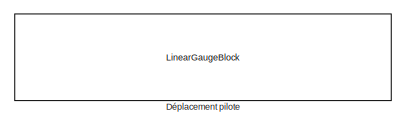
[diagram: root canvas - part 1/2, top right region]
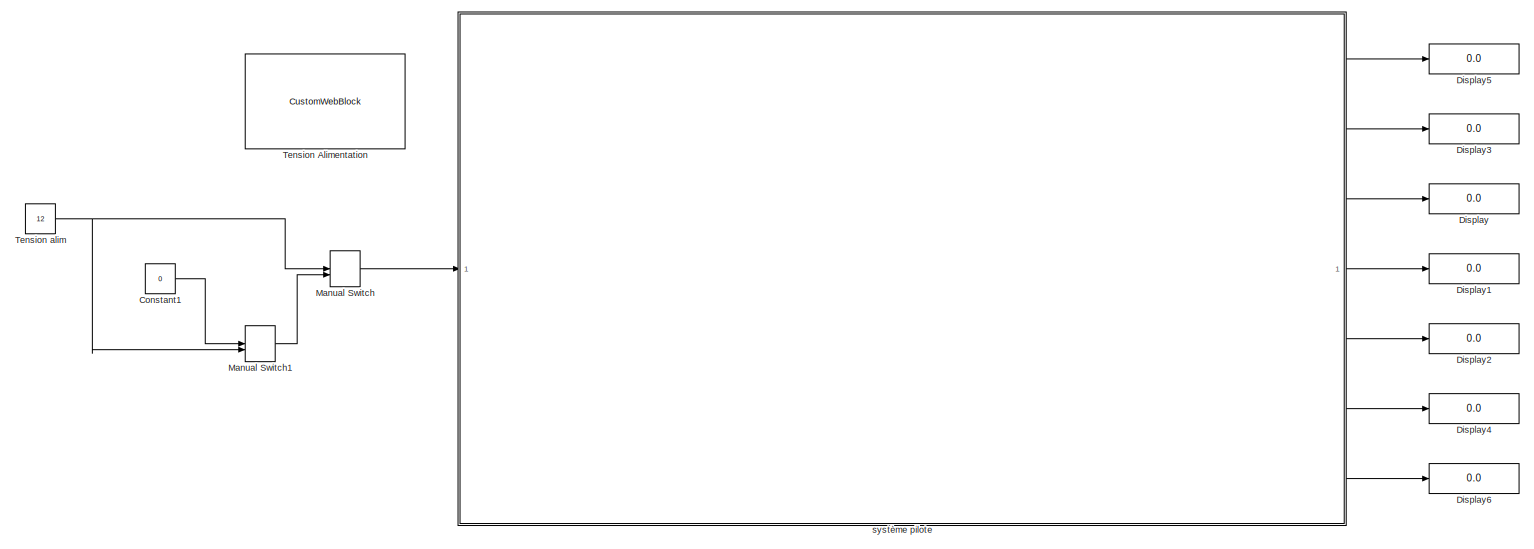
[diagram: root canvas - part 2/2, most of the canvas]
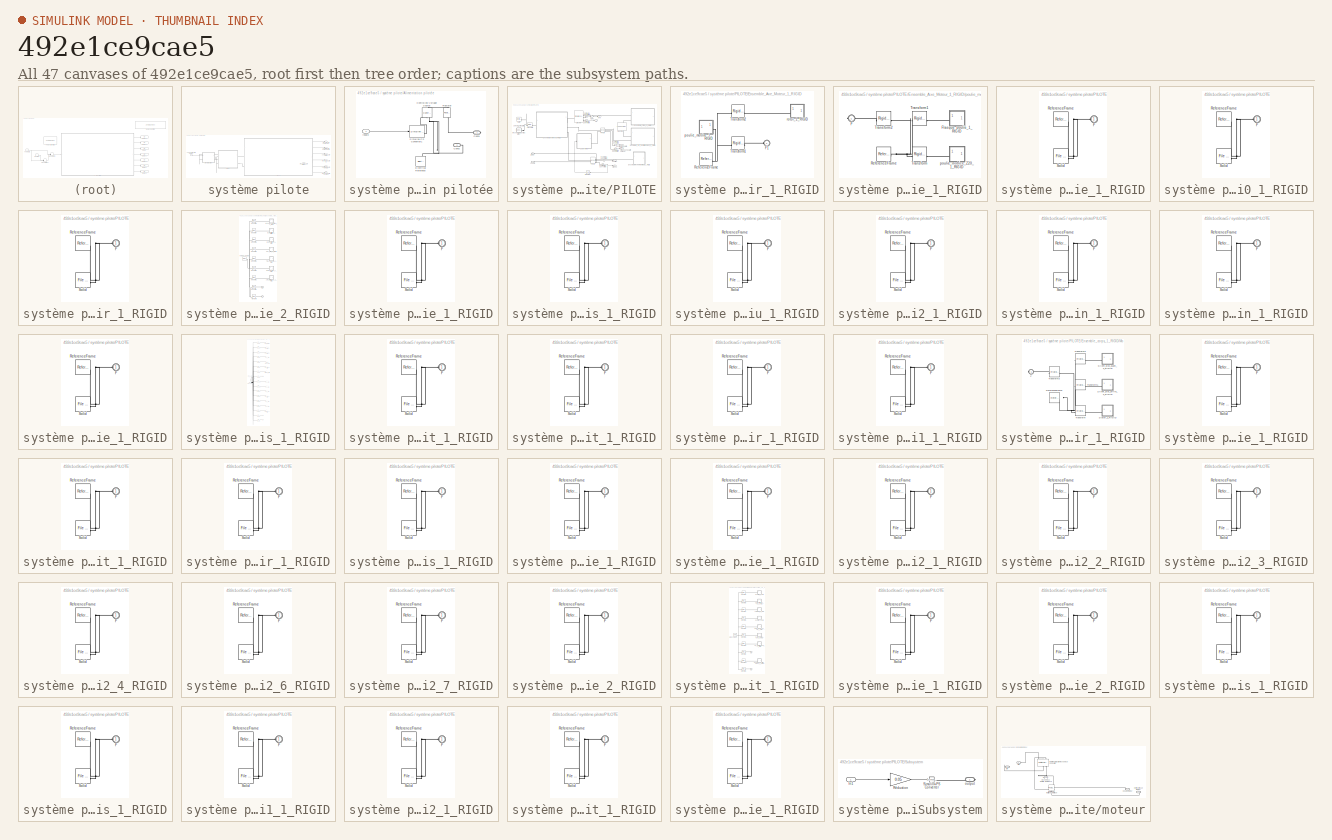
[diagram: thumbnail index - all 47 canvases of the model, root first then tree order]
MODEL slx_492e1ce9cae5
KIND model
CONFIG AbsTol = auto
CONFIG EnableMultiTasking = off
CONFIG FixedStep = auto
CONFIG MaxStep = auto
CONFIG MinStep = auto
CONFIG RelTol = 1e-3
CONFIG SampleTimeConstraint = Unconstrained
CONFIG SolverName = VariableStepAuto
CONFIG StartTime = 0.0
CONFIG StopTime = inf
WORKSPACE source: external: MATLAB File  (data not in archive)
BLOCK [Constant] Constant1
  Value = 0
BLOCK [Display] Display
  Decimation = 1
BLOCK [Display] Display1
  Decimation = 1
BLOCK [Display] Display2
  Decimation = 1
BLOCK [Display] Display3
  Decimation = 1
BLOCK [Display] Display4
  Decimation = 1
BLOCK [Display] Display5
  Decimation = 1
BLOCK [Display] Display6
  Decimation = 1
BLOCK [LinearGaugeBlock] Déplacement pilote
  ScaleMax = 0.3
BLOCK [ManualSwitch] Manual Switch
BLOCK [ManualSwitch] Manual Switch1
BLOCK [CustomWebBlock] Tension Alimentation
  Configuration = {"components":[{"name":"CircularScaleComponent","settings":{"bounds":{"max":15,"min":-15,"tickInterval":"auto"},"direction":"cw","flipLimits":0,"innerRadius":0.75,"internalTickHeightScaleFactor":1,"labelColor":[255,255,200],"labelFont":{"font":"Arial","fontSize":12},"labelRadius":0.528,"labelTransparency":1,"minorTickHeightScaleFactor":0.2,"needleImage":{"size":[200,50],"src":"data:image\/svg+xml;...<+8211ch>
  LabelPosition = Hide
  ShowInitialText = on
BLOCK [Constant] Tension alim
  Value = 12
BLOCK [SubSystem] système pilote
BLOCK [SubSystem] système pilote/Alimentation pilotée
BLOCK [PMIOPort] système pilote/Alimentation pilotée/Conn1
  Side = Right
BLOCK [PMIOPort] système pilote/Alimentation pilotée/Conn2
  Port = 2
  Side = Left
BLOCK [Reference] système pilote/Alimentation pilotée/Controlled Voltage Source  REF=fl_lib/Electrical/Electrical Sources/Controlled Voltage
Source
  NameLocation = right
  SourceBlock = fl_lib/Electrical/Electrical Sources/Controlled Voltage\nSource
  SourceType = Controlled Voltage\nSource
BLOCK [Reference] système pilote/Alimentation pilotée/Electrical Reference  REF=fl_lib/Electrical/Electrical Elements/Electrical Reference
  NameLocation = left
  SourceBlock = fl_lib/Electrical/Electrical Elements/Electrical Reference
  SourceType = Electrical Reference
BLOCK [Reference] système pilote/Alimentation pilotée/Resistor  REF=fl_lib/Electrical/Electrical Elements/Resistor
  NameLocation = left
  SourceBlock = fl_lib/Electrical/Electrical Elements/Resistor
  SourceType = Resistor
BLOCK [Reference] système pilote/Alimentation pilotée/Simulink-PS Converter1  REF=nesl_utility/Simulink-PS
Converter
  NameLocation = top
  SourceBlock = nesl_utility/Simulink-PS\nConverter
  SourceType = Simulink-PS\nConverter
BLOCK [Inport] système pilote/Alimentation pilotée/input0
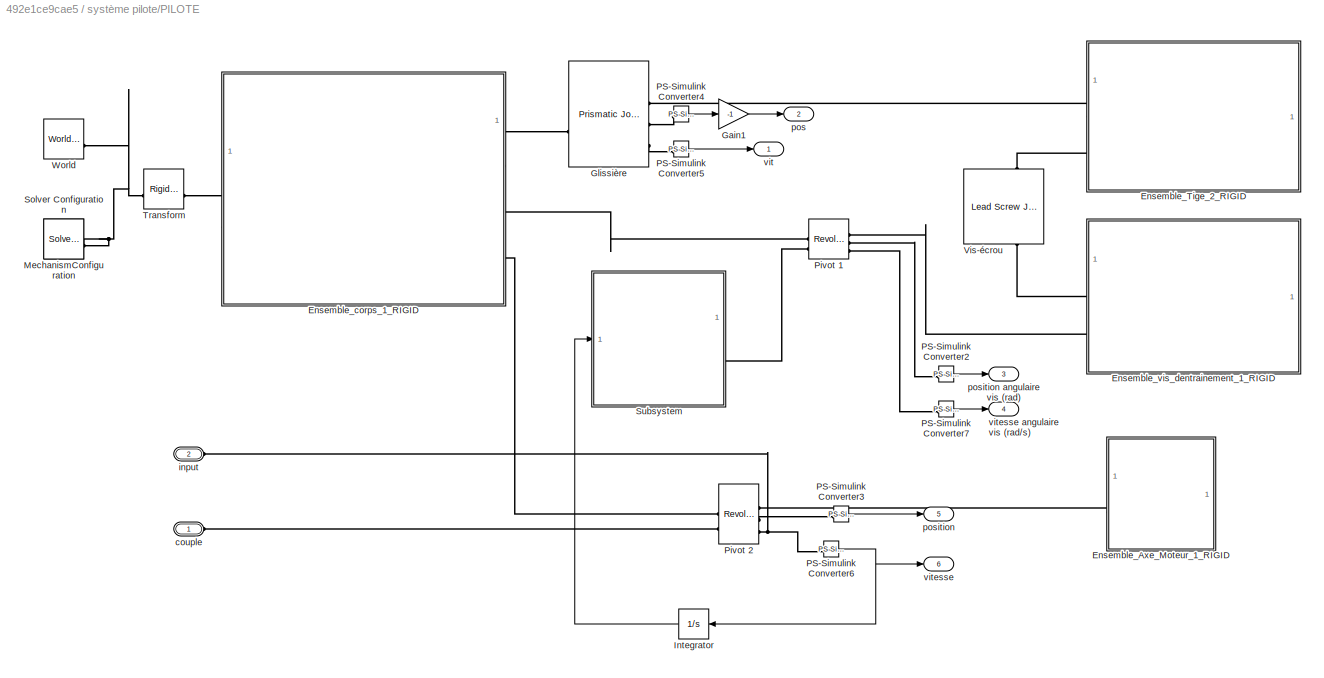
BLOCK [SubSystem] système pilote/PILOTE
BLOCK [SubSystem] système pilote/PILOTE/Ensemble_Axe_Moteur_1_RIGID
BLOCK [PMIOPort] système pilote/PILOTE/Ensemble_Axe_Moteur_1_RIGID/F1
  Side = Left
BLOCK [Reference] système pilote/PILOTE/Ensemble_Axe_Moteur_1_RIGID/ReferenceFrame  REF=sm_lib/Frames and
Transforms/Reference
Frame
  SourceBlock = sm_lib/Frames and\nTransforms/Reference\nFrame
  SourceType = Reference\nFrame
BLOCK [Reference] système pilote/PILOTE/Ensemble_Axe_Moteur_1_RIGID/Transform1  REF=sm_lib/Frames and
Transforms/Rigid
Transform
  SourceBlock = sm_lib/Frames and\nTransforms/Rigid\nTransform
  SourceType = Rigid\nTransform
BLOCK [Reference] système pilote/PILOTE/Ensemble_Axe_Moteur_1_RIGID/Transform2  REF=sm_lib/Frames and
Transforms/Rigid
Transform
  SourceBlock = sm_lib/Frames and\nTransforms/Rigid\nTransform
  SourceType = Rigid\nTransform
BLOCK [SubSystem] système pilote/PILOTE/Ensemble_Axe_Moteur_1_RIGID/poulie_motrice_1_RIGID
BLOCK [PMIOPort] système pilote/PILOTE/Ensemble_Axe_Moteur_1_RIGID/poulie_motrice_1_RIGID/F
  Side = Right
BLOCK [SubSystem] système pilote/PILOTE/Ensemble_Axe_Moteur_1_RIGID/poulie_motrice_1_RIGID/Flasque_poulie_1_RIGID
BLOCK [PMIOPort] système pilote/PILOTE/Ensemble_Axe_Moteur_1_RIGID/poulie_motrice_1_RIGID/Flasque_poulie_1_RIGID/F
  Side = Left
BLOCK [Reference] système pilote/PILOTE/Ensemble_Axe_Moteur_1_RIGID/poulie_motrice_1_RIGID/Flasque_poulie_1_RIGID/ReferenceFrame  REF=sm_lib/Frames and
Transforms/Reference
Frame
  SourceBlock = sm_lib/Frames and\nTransforms/Reference\nFrame
  SourceType = Reference\nFrame
BLOCK [Reference] système pilote/PILOTE/Ensemble_Axe_Moteur_1_RIGID/poulie_motrice_1_RIGID/Flasque_poulie_1_RIGID/Solid  REF=sm_lib/Body Elements/File Solid
  SourceBlock = sm_lib/Body Elements/File Solid
  SourceType = File Solid
BLOCK [Reference] système pilote/PILOTE/Ensemble_Axe_Moteur_1_RIGID/poulie_motrice_1_RIGID/ReferenceFrame  REF=sm_lib/Frames and
Transforms/Reference
Frame
  SourceBlock = sm_lib/Frames and\nTransforms/Reference\nFrame
  SourceType = Reference\nFrame
BLOCK [Reference] système pilote/PILOTE/Ensemble_Axe_Moteur_1_RIGID/poulie_motrice_1_RIGID/Transform  REF=sm_lib/Frames and
Transforms/Rigid
Transform
  SourceBlock = sm_lib/Frames and\nTransforms/Rigid\nTransform
  SourceType = Rigid\nTransform
BLOCK [Reference] système pilote/PILOTE/Ensemble_Axe_Moteur_1_RIGID/poulie_motrice_1_RIGID/Transform1  REF=sm_lib/Frames and
Transforms/Rigid
Transform
  SourceBlock = sm_lib/Frames and\nTransforms/Rigid\nTransform
  SourceType = Rigid\nTransform
BLOCK [Reference] système pilote/PILOTE/Ensemble_Axe_Moteur_1_RIGID/poulie_motrice_1_RIGID/Transform2  REF=sm_lib/Frames and
Transforms/Rigid
Transform
  SourceBlock = sm_lib/Frames and\nTransforms/Rigid\nTransform
  SourceType = Rigid\nTransform
BLOCK [SubSystem] système pilote/PILOTE/Ensemble_Axe_Moteur_1_RIGID/poulie_motrice_1_RIGID/poulie_motrice_Z20_1_RIGID
BLOCK [PMIOPort] système pilote/PILOTE/Ensemble_Axe_Moteur_1_RIGID/poulie_motrice_1_RIGID/poulie_motrice_Z20_1_RIGID/F
  Side = Left
BLOCK [Reference] système pilote/PILOTE/Ensemble_Axe_Moteur_1_RIGID/poulie_motrice_1_RIGID/poulie_motrice_Z20_1_RIGID/ReferenceFrame  REF=sm_lib/Frames and
Transforms/Reference
Frame
  SourceBlock = sm_lib/Frames and\nTransforms/Reference\nFrame
  SourceType = Reference\nFrame
BLOCK [Reference] système pilote/PILOTE/Ensemble_Axe_Moteur_1_RIGID/poulie_motrice_1_RIGID/poulie_motrice_Z20_1_RIGID/Solid  REF=sm_lib/Body Elements/File Solid
  SourceBlock = sm_lib/Body Elements/File Solid
  SourceType = File Solid
BLOCK [SubSystem] système pilote/PILOTE/Ensemble_Axe_Moteur_1_RIGID/rotor_1_RIGID
BLOCK [PMIOPort] système pilote/PILOTE/Ensemble_Axe_Moteur_1_RIGID/rotor_1_RIGID/F
  Side = Left
BLOCK [Reference] système pilote/PILOTE/Ensemble_Axe_Moteur_1_RIGID/rotor_1_RIGID/ReferenceFrame  REF=sm_lib/Frames and
Transforms/Reference
Frame
  SourceBlock = sm_lib/Frames and\nTransforms/Reference\nFrame
  SourceType = Reference\nFrame
BLOCK [Reference] système pilote/PILOTE/Ensemble_Axe_Moteur_1_RIGID/rotor_1_RIGID/Solid  REF=sm_lib/Body Elements/File Solid
  SourceBlock = sm_lib/Body Elements/File Solid
  SourceType = File Solid
BLOCK [SubSystem] système pilote/PILOTE/Ensemble_Tige_2_RIGID
BLOCK [SubSystem] système pilote/PILOTE/Ensemble_Tige_2_RIGID/Bute_arrire_1_RIGID
BLOCK [PMIOPort] système pilote/PILOTE/Ensemble_Tige_2_RIGID/Bute_arrire_1_RIGID/F
  Side = Left
BLOCK [Reference] système pilote/PILOTE/Ensemble_Tige_2_RIGID/Bute_arrire_1_RIGID/ReferenceFrame  REF=sm_lib/Frames and
Transforms/Reference
Frame
  SourceBlock = sm_lib/Frames and\nTransforms/Reference\nFrame
  SourceType = Reference\nFrame
BLOCK [Reference] système pilote/PILOTE/Ensemble_Tige_2_RIGID/Bute_arrire_1_RIGID/Solid  REF=sm_lib/Body Elements/File Solid
  SourceBlock = sm_lib/Body Elements/File Solid
  SourceType = File Solid
BLOCK [SubSystem] système pilote/PILOTE/Ensemble_Tige_2_RIGID/Ecrou_billes_1_RIGID
BLOCK [PMIOPort] système pilote/PILOTE/Ensemble_Tige_2_RIGID/Ecrou_billes_1_RIGID/F
  Side = Left
BLOCK [Reference] système pilote/PILOTE/Ensemble_Tige_2_RIGID/Ecrou_billes_1_RIGID/ReferenceFrame  REF=sm_lib/Frames and
Transforms/Reference
Frame
  SourceBlock = sm_lib/Frames and\nTransforms/Reference\nFrame
  SourceType = Reference\nFrame
BLOCK [Reference] système pilote/PILOTE/Ensemble_Tige_2_RIGID/Ecrou_billes_1_RIGID/Solid  REF=sm_lib/Body Elements/File Solid
  SourceBlock = sm_lib/Body Elements/File Solid
  SourceType = File Solid
BLOCK [PMIOPort] système pilote/PILOTE/Ensemble_Tige_2_RIGID/F
  Side = Left
BLOCK [PMIOPort] système pilote/PILOTE/Ensemble_Tige_2_RIGID/F1
  Port = 2
  Side = Left
BLOCK [SubSystem] système pilote/PILOTE/Ensemble_Tige_2_RIGID/Guide_ecrou_1_RIGID
BLOCK [PMIOPort] système pilote/PILOTE/Ensemble_Tige_2_RIGID/Guide_ecrou_1_RIGID/F
  Side = Left
BLOCK [Reference] système pilote/PILOTE/Ensemble_Tige_2_RIGID/Guide_ecrou_1_RIGID/ReferenceFrame  REF=sm_lib/Frames and
Transforms/Reference
Frame
  SourceBlock = sm_lib/Frames and\nTransforms/Reference\nFrame
  SourceType = Reference\nFrame
BLOCK [Reference] système pilote/PILOTE/Ensemble_Tige_2_RIGID/Guide_ecrou_1_RIGID/Solid  REF=sm_lib/Body Elements/File Solid
  SourceBlock = sm_lib/Body Elements/File Solid
  SourceType = File Solid
BLOCK [SubSystem] système pilote/PILOTE/Ensemble_Tige_2_RIGID/Joint_torique_2_1_RIGID
BLOCK [PMIOPort] système pilote/PILOTE/Ensemble_Tige_2_RIGID/Joint_torique_2_1_RIGID/F
  Side = Left
BLOCK [Reference] système pilote/PILOTE/Ensemble_Tige_2_RIGID/Joint_torique_2_1_RIGID/ReferenceFrame  REF=sm_lib/Frames and
Transforms/Reference
Frame
  SourceBlock = sm_lib/Frames and\nTransforms/Reference\nFrame
  SourceType = Reference\nFrame
BLOCK [Reference] système pilote/PILOTE/Ensemble_Tige_2_RIGID/Joint_torique_2_1_RIGID/Solid  REF=sm_lib/Body Elements/File Solid
  SourceBlock = sm_lib/Body Elements/File Solid
  SourceType = File Solid
BLOCK [SubSystem] système pilote/PILOTE/Ensemble_Tige_2_RIGID/Nez_vrin_1_RIGID
BLOCK [PMIOPort] système pilote/PILOTE/Ensemble_Tige_2_RIGID/Nez_vrin_1_RIGID/F
  Side = Left
BLOCK [Reference] système pilote/PILOTE/Ensemble_Tige_2_RIGID/Nez_vrin_1_RIGID/ReferenceFrame  REF=sm_lib/Frames and
Transforms/Reference
Frame
  SourceBlock = sm_lib/Frames and\nTransforms/Reference\nFrame
  SourceType = Reference\nFrame
BLOCK [Reference] système pilote/PILOTE/Ensemble_Tige_2_RIGID/Nez_vrin_1_RIGID/Solid  REF=sm_lib/Body Elements/File Solid
  SourceBlock = sm_lib/Body Elements/File Solid
  SourceType = File Solid
BLOCK [Reference] système pilote/PILOTE/Ensemble_Tige_2_RIGID/ReferenceFrame  REF=sm_lib/Frames and
Transforms/Reference
Frame
  SourceBlock = sm_lib/Frames and\nTransforms/Reference\nFrame
  SourceType = Reference\nFrame
BLOCK [SubSystem] système pilote/PILOTE/Ensemble_Tige_2_RIGID/Tige_de_vrin_1_RIGID
BLOCK [PMIOPort] système pilote/PILOTE/Ensemble_Tige_2_RIGID/Tige_de_vrin_1_RIGID/F
  Side = Left
BLOCK [Reference] système pilote/PILOTE/Ensemble_Tige_2_RIGID/Tige_de_vrin_1_RIGID/ReferenceFrame  REF=sm_lib/Frames and
Transforms/Reference
Frame
  SourceBlock = sm_lib/Frames and\nTransforms/Reference\nFrame
  SourceType = Reference\nFrame
BLOCK [Reference] système pilote/PILOTE/Ensemble_Tige_2_RIGID/Tige_de_vrin_1_RIGID/Solid  REF=sm_lib/Body Elements/File Solid
  SourceBlock = sm_lib/Body Elements/File Solid
  SourceType = File Solid
BLOCK [Reference] système pilote/PILOTE/Ensemble_Tige_2_RIGID/Transform  REF=sm_lib/Frames and
Transforms/Rigid
Transform
  SourceBlock = sm_lib/Frames and\nTransforms/Rigid\nTransform
  SourceType = Rigid\nTransform
BLOCK [Reference] système pilote/PILOTE/Ensemble_Tige_2_RIGID/Transform1  REF=sm_lib/Frames and
Transforms/Rigid
Transform
  SourceBlock = sm_lib/Frames and\nTransforms/Rigid\nTransform
  SourceType = Rigid\nTransform
BLOCK [Reference] système pilote/PILOTE/Ensemble_Tige_2_RIGID/Transform2  REF=sm_lib/Frames and
Transforms/Rigid
Transform
  SourceBlock = sm_lib/Frames and\nTransforms/Rigid\nTransform
  SourceType = Rigid\nTransform
BLOCK [Reference] système pilote/PILOTE/Ensemble_Tige_2_RIGID/Transform3  REF=sm_lib/Frames and
Transforms/Rigid
Transform
  SourceBlock = sm_lib/Frames and\nTransforms/Rigid\nTransform
  SourceType = Rigid\nTransform
BLOCK [Reference] système pilote/PILOTE/Ensemble_Tige_2_RIGID/Transform4  REF=sm_lib/Frames and
Transforms/Rigid
Transform
  SourceBlock = sm_lib/Frames and\nTransforms/Rigid\nTransform
  SourceType = Rigid\nTransform
BLOCK [Reference] système pilote/PILOTE/Ensemble_Tige_2_RIGID/Transform5  REF=sm_lib/Frames and
Transforms/Rigid
Transform
  SourceBlock = sm_lib/Frames and\nTransforms/Rigid\nTransform
  SourceType = Rigid\nTransform
BLOCK [Reference] système pilote/PILOTE/Ensemble_Tige_2_RIGID/Transform6  REF=sm_lib/Frames and
Transforms/Rigid
Transform
  SourceBlock = sm_lib/Frames and\nTransforms/Rigid\nTransform
  SourceType = Rigid\nTransform
BLOCK [Reference] système pilote/PILOTE/Ensemble_Tige_2_RIGID/Transform7  REF=sm_lib/Frames and
Transforms/Rigid
Transform
  SourceBlock = sm_lib/Frames and\nTransforms/Rigid\nTransform
  SourceType = Rigid\nTransform
BLOCK [Reference] système pilote/PILOTE/Ensemble_Tige_2_RIGID/Transform8  REF=sm_lib/Frames and
Transforms/Rigid
Transform
  SourceBlock = sm_lib/Frames and\nTransforms/Rigid\nTransform
  SourceType = Rigid\nTransform
BLOCK [SubSystem] système pilote/PILOTE/Ensemble_Tige_2_RIGID/anneau_elastique_1_RIGID
BLOCK [PMIOPort] système pilote/PILOTE/Ensemble_Tige_2_RIGID/anneau_elastique_1_RIGID/F
  Side = Left
BLOCK [Reference] système pilote/PILOTE/Ensemble_Tige_2_RIGID/anneau_elastique_1_RIGID/ReferenceFrame  REF=sm_lib/Frames and
Transforms/Reference
Frame
  SourceBlock = sm_lib/Frames and\nTransforms/Reference\nFrame
  SourceType = Reference\nFrame
BLOCK [Reference] système pilote/PILOTE/Ensemble_Tige_2_RIGID/anneau_elastique_1_RIGID/Solid  REF=sm_lib/Body Elements/File Solid
  SourceBlock = sm_lib/Body Elements/File Solid
  SourceType = File Solid
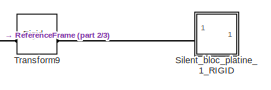
[diagram: système pilote/PILOTE/Ensemble_corps_1_RIGID - part 1/3, top right region]
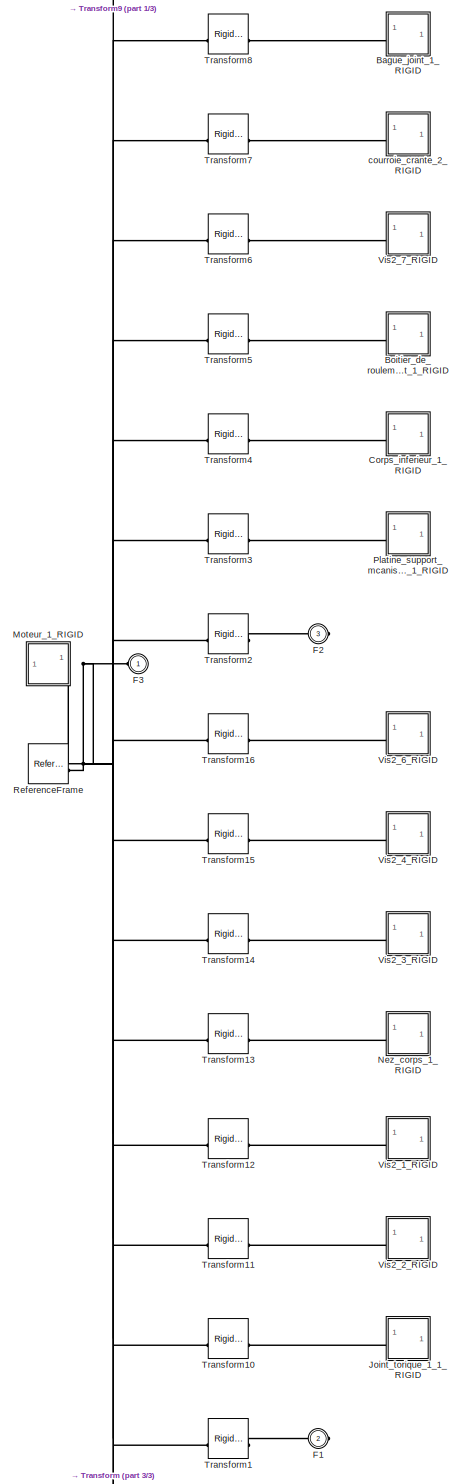
[diagram: système pilote/PILOTE/Ensemble_corps_1_RIGID - part 2/3, most of the canvas]
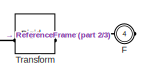
[diagram: système pilote/PILOTE/Ensemble_corps_1_RIGID - part 3/3, bottom center region]
BLOCK [SubSystem] système pilote/PILOTE/Ensemble_corps_1_RIGID
BLOCK [SubSystem] système pilote/PILOTE/Ensemble_corps_1_RIGID/Bague_joint_1_RIGID
BLOCK [PMIOPort] système pilote/PILOTE/Ensemble_corps_1_RIGID/Bague_joint_1_RIGID/F
  Side = Left
BLOCK [Reference] système pilote/PILOTE/Ensemble_corps_1_RIGID/Bague_joint_1_RIGID/ReferenceFrame  REF=sm_lib/Frames and
Transforms/Reference
Frame
  SourceBlock = sm_lib/Frames and\nTransforms/Reference\nFrame
  SourceType = Reference\nFrame
BLOCK [Reference] système pilote/PILOTE/Ensemble_corps_1_RIGID/Bague_joint_1_RIGID/Solid  REF=sm_lib/Body Elements/File Solid
  SourceBlock = sm_lib/Body Elements/File Solid
  SourceType = File Solid
BLOCK [SubSystem] système pilote/PILOTE/Ensemble_corps_1_RIGID/Boitier_de_roulement_1_RIGID
BLOCK [PMIOPort] système pilote/PILOTE/Ensemble_corps_1_RIGID/Boitier_de_roulement_1_RIGID/F
  Side = Left
BLOCK [Reference] système pilote/PILOTE/Ensemble_corps_1_RIGID/Boitier_de_roulement_1_RIGID/ReferenceFrame  REF=sm_lib/Frames and
Transforms/Reference
Frame
  SourceBlock = sm_lib/Frames and\nTransforms/Reference\nFrame
  SourceType = Reference\nFrame
BLOCK [Reference] système pilote/PILOTE/Ensemble_corps_1_RIGID/Boitier_de_roulement_1_RIGID/Solid  REF=sm_lib/Body Elements/File Solid
  SourceBlock = sm_lib/Body Elements/File Solid
  SourceType = File Solid
BLOCK [SubSystem] système pilote/PILOTE/Ensemble_corps_1_RIGID/Corps_inferieur_1_RIGID
BLOCK [PMIOPort] système pilote/PILOTE/Ensemble_corps_1_RIGID/Corps_inferieur_1_RIGID/F
  Side = Left
BLOCK [Reference] système pilote/PILOTE/Ensemble_corps_1_RIGID/Corps_inferieur_1_RIGID/ReferenceFrame  REF=sm_lib/Frames and
Transforms/Reference
Frame
  SourceBlock = sm_lib/Frames and\nTransforms/Reference\nFrame
  SourceType = Reference\nFrame
BLOCK [Reference] système pilote/PILOTE/Ensemble_corps_1_RIGID/Corps_inferieur_1_RIGID/Solid  REF=sm_lib/Body Elements/File Solid
  SourceBlock = sm_lib/Body Elements/File Solid
  SourceType = File Solid
BLOCK [PMIOPort] système pilote/PILOTE/Ensemble_corps_1_RIGID/F
  Port = 4
  Side = Right
BLOCK [PMIOPort] système pilote/PILOTE/Ensemble_corps_1_RIGID/F1
  Port = 2
  Side = Right
BLOCK [PMIOPort] système pilote/PILOTE/Ensemble_corps_1_RIGID/F2
  Port = 3
  Side = Right
BLOCK [PMIOPort] système pilote/PILOTE/Ensemble_corps_1_RIGID/F3
  Side = Left
BLOCK [SubSystem] système pilote/PILOTE/Ensemble_corps_1_RIGID/Joint_torique_1_1_RIGID
BLOCK [PMIOPort] système pilote/PILOTE/Ensemble_corps_1_RIGID/Joint_torique_1_1_RIGID/F
  Side = Left
BLOCK [Reference] système pilote/PILOTE/Ensemble_corps_1_RIGID/Joint_torique_1_1_RIGID/ReferenceFrame  REF=sm_lib/Frames and
Transforms/Reference
Frame
  SourceBlock = sm_lib/Frames and\nTransforms/Reference\nFrame
  SourceType = Reference\nFrame
BLOCK [Reference] système pilote/PILOTE/Ensemble_corps_1_RIGID/Joint_torique_1_1_RIGID/Solid  REF=sm_lib/Body Elements/File Solid
  SourceBlock = sm_lib/Body Elements/File Solid
  SourceType = File Solid
BLOCK [SubSystem] système pilote/PILOTE/Ensemble_corps_1_RIGID/Moteur_1_RIGID
BLOCK [PMIOPort] système pilote/PILOTE/Ensemble_corps_1_RIGID/Moteur_1_RIGID/F
  Side = Right
BLOCK [Reference] système pilote/PILOTE/Ensemble_corps_1_RIGID/Moteur_1_RIGID/ReferenceFrame  REF=sm_lib/Frames and
Transforms/Reference
Frame
  SourceBlock = sm_lib/Frames and\nTransforms/Reference\nFrame
  SourceType = Reference\nFrame
BLOCK [SubSystem] système pilote/PILOTE/Ensemble_corps_1_RIGID/Moteur_1_RIGID/Silent_bloc_arrire_1_RIGID
BLOCK [PMIOPort] système pilote/PILOTE/Ensemble_corps_1_RIGID/Moteur_1_RIGID/Silent_bloc_arrire_1_RIGID/F
  Side = Left
BLOCK [Reference] système pilote/PILOTE/Ensemble_corps_1_RIGID/Moteur_1_RIGID/Silent_bloc_arrire_1_RIGID/ReferenceFrame  REF=sm_lib/Frames and
Transforms/Reference
Frame
  SourceBlock = sm_lib/Frames and\nTransforms/Reference\nFrame
  SourceType = Reference\nFrame
BLOCK [Reference] système pilote/PILOTE/Ensemble_corps_1_RIGID/Moteur_1_RIGID/Silent_bloc_arrire_1_RIGID/Solid  REF=sm_lib/Body Elements/File Solid
  SourceBlock = sm_lib/Body Elements/File Solid
  SourceType = File Solid
BLOCK [SubSystem] système pilote/PILOTE/Ensemble_corps_1_RIGID/Moteur_1_RIGID/Silent_bloc_avant_1_RIGID
BLOCK [PMIOPort] système pilote/PILOTE/Ensemble_corps_1_RIGID/Moteur_1_RIGID/Silent_bloc_avant_1_RIGID/F
  Side = Left
BLOCK [Reference] système pilote/PILOTE/Ensemble_corps_1_RIGID/Moteur_1_RIGID/Silent_bloc_avant_1_RIGID/ReferenceFrame  REF=sm_lib/Frames and
Transforms/Reference
Frame
  SourceBlock = sm_lib/Frames and\nTransforms/Reference\nFrame
  SourceType = Reference\nFrame
BLOCK [Reference] système pilote/PILOTE/Ensemble_corps_1_RIGID/Moteur_1_RIGID/Silent_bloc_avant_1_RIGID/Solid  REF=sm_lib/Body Elements/File Solid
  SourceBlock = sm_lib/Body Elements/File Solid
  SourceType = File Solid
BLOCK [SubSystem] système pilote/PILOTE/Ensemble_corps_1_RIGID/Moteur_1_RIGID/Stator_1_RIGID
BLOCK [PMIOPort] système pilote/PILOTE/Ensemble_corps_1_RIGID/Moteur_1_RIGID/Stator_1_RIGID/F
  Side = Left
BLOCK [Reference] système pilote/PILOTE/Ensemble_corps_1_RIGID/Moteur_1_RIGID/Stator_1_RIGID/ReferenceFrame  REF=sm_lib/Frames and
Transforms/Reference
Frame
  SourceBlock = sm_lib/Frames and\nTransforms/Reference\nFrame
  SourceType = Reference\nFrame
BLOCK [Reference] système pilote/PILOTE/Ensemble_corps_1_RIGID/Moteur_1_RIGID/Stator_1_RIGID/Solid  REF=sm_lib/Body Elements/File Solid
  SourceBlock = sm_lib/Body Elements/File Solid
  SourceType = File Solid
BLOCK [Reference] système pilote/PILOTE/Ensemble_corps_1_RIGID/Moteur_1_RIGID/Transform  REF=sm_lib/Frames and
Transforms/Rigid
Transform
  SourceBlock = sm_lib/Frames and\nTransforms/Rigid\nTransform
  SourceType = Rigid\nTransform
BLOCK [Reference] système pilote/PILOTE/Ensemble_corps_1_RIGID/Moteur_1_RIGID/Transform1  REF=sm_lib/Frames and
Transforms/Rigid
Transform
  SourceBlock = sm_lib/Frames and\nTransforms/Rigid\nTransform
  SourceType = Rigid\nTransform
BLOCK [Reference] système pilote/PILOTE/Ensemble_corps_1_RIGID/Moteur_1_RIGID/Transform2  REF=sm_lib/Frames and
Transforms/Rigid
Transform
  SourceBlock = sm_lib/Frames and\nTransforms/Rigid\nTransform
  SourceType = Rigid\nTransform
BLOCK [Reference] système pilote/PILOTE/Ensemble_corps_1_RIGID/Moteur_1_RIGID/Transform3  REF=sm_lib/Frames and
Transforms/Rigid
Transform
  SourceBlock = sm_lib/Frames and\nTransforms/Rigid\nTransform
  SourceType = Rigid\nTransform
BLOCK [SubSystem] système pilote/PILOTE/Ensemble_corps_1_RIGID/Nez_corps_1_RIGID
BLOCK [PMIOPort] système pilote/PILOTE/Ensemble_corps_1_RIGID/Nez_corps_1_RIGID/F
  Side = Left
BLOCK [Reference] système pilote/PILOTE/Ensemble_corps_1_RIGID/Nez_corps_1_RIGID/ReferenceFrame  REF=sm_lib/Frames and
Transforms/Reference
Frame
  SourceBlock = sm_lib/Frames and\nTransforms/Reference\nFrame
  SourceType = Reference\nFrame
BLOCK [Reference] système pilote/PILOTE/Ensemble_corps_1_RIGID/Nez_corps_1_RIGID/Solid  REF=sm_lib/Body Elements/File Solid
  SourceBlock = sm_lib/Body Elements/File Solid
  SourceType = File Solid
BLOCK [SubSystem] système pilote/PILOTE/Ensemble_corps_1_RIGID/Platine_support_mcanisme_1_RIGID
BLOCK [PMIOPort] système pilote/PILOTE/Ensemble_corps_1_RIGID/Platine_support_mcanisme_1_RIGID/F
  Side = Left
BLOCK [Reference] système pilote/PILOTE/Ensemble_corps_1_RIGID/Platine_support_mcanisme_1_RIGID/ReferenceFrame  REF=sm_lib/Frames and
Transforms/Reference
Frame
  SourceBlock = sm_lib/Frames and\nTransforms/Reference\nFrame
  SourceType = Reference\nFrame
BLOCK [Reference] système pilote/PILOTE/Ensemble_corps_1_RIGID/Platine_support_mcanisme_1_RIGID/Solid  REF=sm_lib/Body Elements/File Solid
  SourceBlock = sm_lib/Body Elements/File Solid
  SourceType = File Solid
BLOCK [Reference] système pilote/PILOTE/Ensemble_corps_1_RIGID/ReferenceFrame  REF=sm_lib/Frames and
Transforms/Reference
Frame
  SourceBlock = sm_lib/Frames and\nTransforms/Reference\nFrame
  SourceType = Reference\nFrame
BLOCK [SubSystem] système pilote/PILOTE/Ensemble_corps_1_RIGID/Silent_bloc_platine_1_RIGID
BLOCK [PMIOPort] système pilote/PILOTE/Ensemble_corps_1_RIGID/Silent_bloc_platine_1_RIGID/F
  Side = Left
BLOCK [Reference] système pilote/PILOTE/Ensemble_corps_1_RIGID/Silent_bloc_platine_1_RIGID/ReferenceFrame  REF=sm_lib/Frames and
Transforms/Reference
Frame
  SourceBlock = sm_lib/Frames and\nTransforms/Reference\nFrame
  SourceType = Reference\nFrame
BLOCK [Reference] système pilote/PILOTE/Ensemble_corps_1_RIGID/Silent_bloc_platine_1_RIGID/Solid  REF=sm_lib/Body Elements/File Solid
  SourceBlock = sm_lib/Body Elements/File Solid
  SourceType = File Solid
BLOCK [Reference] système pilote/PILOTE/Ensemble_corps_1_RIGID/Transform  REF=sm_lib/Frames and
Transforms/Rigid
Transform
  SourceBlock = sm_lib/Frames and\nTransforms/Rigid\nTransform
  SourceType = Rigid\nTransform
BLOCK [Reference] système pilote/PILOTE/Ensemble_corps_1_RIGID/Transform1  REF=sm_lib/Frames and
Transforms/Rigid
Transform
  SourceBlock = sm_lib/Frames and\nTransforms/Rigid\nTransform
  SourceType = Rigid\nTransform
BLOCK [Reference] système pilote/PILOTE/Ensemble_corps_1_RIGID/Transform10  REF=sm_lib/Frames and
Transforms/Rigid
Transform
  SourceBlock = sm_lib/Frames and\nTransforms/Rigid\nTransform
  SourceType = Rigid\nTransform
BLOCK [Reference] système pilote/PILOTE/Ensemble_corps_1_RIGID/Transform11  REF=sm_lib/Frames and
Transforms/Rigid
Transform
  SourceBlock = sm_lib/Frames and\nTransforms/Rigid\nTransform
  SourceType = Rigid\nTransform
BLOCK [Reference] système pilote/PILOTE/Ensemble_corps_1_RIGID/Transform12  REF=sm_lib/Frames and
Transforms/Rigid
Transform
  SourceBlock = sm_lib/Frames and\nTransforms/Rigid\nTransform
  SourceType = Rigid\nTransform
BLOCK [Reference] système pilote/PILOTE/Ensemble_corps_1_RIGID/Transform13  REF=sm_lib/Frames and
Transforms/Rigid
Transform
  SourceBlock = sm_lib/Frames and\nTransforms/Rigid\nTransform
  SourceType = Rigid\nTransform
BLOCK [Reference] système pilote/PILOTE/Ensemble_corps_1_RIGID/Transform14  REF=sm_lib/Frames and
Transforms/Rigid
Transform
  SourceBlock = sm_lib/Frames and\nTransforms/Rigid\nTransform
  SourceType = Rigid\nTransform
BLOCK [Reference] système pilote/PILOTE/Ensemble_corps_1_RIGID/Transform15  REF=sm_lib/Frames and
Transforms/Rigid
Transform
  SourceBlock = sm_lib/Frames and\nTransforms/Rigid\nTransform
  SourceType = Rigid\nTransform
BLOCK [Reference] système pilote/PILOTE/Ensemble_corps_1_RIGID/Transform16  REF=sm_lib/Frames and
Transforms/Rigid
Transform
  SourceBlock = sm_lib/Frames and\nTransforms/Rigid\nTransform
  SourceType = Rigid\nTransform
BLOCK [Reference] système pilote/PILOTE/Ensemble_corps_1_RIGID/Transform2  REF=sm_lib/Frames and
Transforms/Rigid
Transform
  SourceBlock = sm_lib/Frames and\nTransforms/Rigid\nTransform
  SourceType = Rigid\nTransform
BLOCK [Reference] système pilote/PILOTE/Ensemble_corps_1_RIGID/Transform3  REF=sm_lib/Frames and
Transforms/Rigid
Transform
  SourceBlock = sm_lib/Frames and\nTransforms/Rigid\nTransform
  SourceType = Rigid\nTransform
BLOCK [Reference] système pilote/PILOTE/Ensemble_corps_1_RIGID/Transform4  REF=sm_lib/Frames and
Transforms/Rigid
Transform
  SourceBlock = sm_lib/Frames and\nTransforms/Rigid\nTransform
  SourceType = Rigid\nTransform
BLOCK [Reference] système pilote/PILOTE/Ensemble_corps_1_RIGID/Transform5  REF=sm_lib/Frames and
Transforms/Rigid
Transform
  SourceBlock = sm_lib/Frames and\nTransforms/Rigid\nTransform
  SourceType = Rigid\nTransform
BLOCK [Reference] système pilote/PILOTE/Ensemble_corps_1_RIGID/Transform6  REF=sm_lib/Frames and
Transforms/Rigid
Transform
  SourceBlock = sm_lib/Frames and\nTransforms/Rigid\nTransform
  SourceType = Rigid\nTransform
BLOCK [Reference] système pilote/PILOTE/Ensemble_corps_1_RIGID/Transform7  REF=sm_lib/Frames and
Transforms/Rigid
Transform
  SourceBlock = sm_lib/Frames and\nTransforms/Rigid\nTransform
  SourceType = Rigid\nTransform
BLOCK [Reference] système pilote/PILOTE/Ensemble_corps_1_RIGID/Transform8  REF=sm_lib/Frames and
Transforms/Rigid
Transform
  SourceBlock = sm_lib/Frames and\nTransforms/Rigid\nTransform
  SourceType = Rigid\nTransform
BLOCK [Reference] système pilote/PILOTE/Ensemble_corps_1_RIGID/Transform9  REF=sm_lib/Frames and
Transforms/Rigid
Transform
  SourceBlock = sm_lib/Frames and\nTransforms/Rigid\nTransform
  SourceType = Rigid\nTransform
BLOCK [SubSystem] système pilote/PILOTE/Ensemble_corps_1_RIGID/Vis2_1_RIGID
BLOCK [PMIOPort] système pilote/PILOTE/Ensemble_corps_1_RIGID/Vis2_1_RIGID/F
  Side = Left
BLOCK [Reference] système pilote/PILOTE/Ensemble_corps_1_RIGID/Vis2_1_RIGID/ReferenceFrame  REF=sm_lib/Frames and
Transforms/Reference
Frame
  SourceBlock = sm_lib/Frames and\nTransforms/Reference\nFrame
  SourceType = Reference\nFrame
BLOCK [Reference] système pilote/PILOTE/Ensemble_corps_1_RIGID/Vis2_1_RIGID/Solid  REF=sm_lib/Body Elements/File Solid
  SourceBlock = sm_lib/Body Elements/File Solid
  SourceType = File Solid
BLOCK [SubSystem] système pilote/PILOTE/Ensemble_corps_1_RIGID/Vis2_2_RIGID
BLOCK [PMIOPort] système pilote/PILOTE/Ensemble_corps_1_RIGID/Vis2_2_RIGID/F
  Side = Left
BLOCK [Reference] système pilote/PILOTE/Ensemble_corps_1_RIGID/Vis2_2_RIGID/ReferenceFrame  REF=sm_lib/Frames and
Transforms/Reference
Frame
  SourceBlock = sm_lib/Frames and\nTransforms/Reference\nFrame
  SourceType = Reference\nFrame
BLOCK [Reference] système pilote/PILOTE/Ensemble_corps_1_RIGID/Vis2_2_RIGID/Solid  REF=sm_lib/Body Elements/File Solid
  SourceBlock = sm_lib/Body Elements/File Solid
  SourceType = File Solid
BLOCK [SubSystem] système pilote/PILOTE/Ensemble_corps_1_RIGID/Vis2_3_RIGID
BLOCK [PMIOPort] système pilote/PILOTE/Ensemble_corps_1_RIGID/Vis2_3_RIGID/F
  Side = Left
BLOCK [Reference] système pilote/PILOTE/Ensemble_corps_1_RIGID/Vis2_3_RIGID/ReferenceFrame  REF=sm_lib/Frames and
Transforms/Reference
Frame
  SourceBlock = sm_lib/Frames and\nTransforms/Reference\nFrame
  SourceType = Reference\nFrame
BLOCK [Reference] système pilote/PILOTE/Ensemble_corps_1_RIGID/Vis2_3_RIGID/Solid  REF=sm_lib/Body Elements/File Solid
  SourceBlock = sm_lib/Body Elements/File Solid
  SourceType = File Solid
BLOCK [SubSystem] système pilote/PILOTE/Ensemble_corps_1_RIGID/Vis2_4_RIGID
BLOCK [PMIOPort] système pilote/PILOTE/Ensemble_corps_1_RIGID/Vis2_4_RIGID/F
  Side = Left
BLOCK [Reference] système pilote/PILOTE/Ensemble_corps_1_RIGID/Vis2_4_RIGID/ReferenceFrame  REF=sm_lib/Frames and
Transforms/Reference
Frame
  SourceBlock = sm_lib/Frames and\nTransforms/Reference\nFrame
  SourceType = Reference\nFrame
BLOCK [Reference] système pilote/PILOTE/Ensemble_corps_1_RIGID/Vis2_4_RIGID/Solid  REF=sm_lib/Body Elements/File Solid
  SourceBlock = sm_lib/Body Elements/File Solid
  SourceType = File Solid
BLOCK [SubSystem] système pilote/PILOTE/Ensemble_corps_1_RIGID/Vis2_6_RIGID
BLOCK [PMIOPort] système pilote/PILOTE/Ensemble_corps_1_RIGID/Vis2_6_RIGID/F
  Side = Left
BLOCK [Reference] système pilote/PILOTE/Ensemble_corps_1_RIGID/Vis2_6_RIGID/ReferenceFrame  REF=sm_lib/Frames and
Transforms/Reference
Frame
  SourceBlock = sm_lib/Frames and\nTransforms/Reference\nFrame
  SourceType = Reference\nFrame
BLOCK [Reference] système pilote/PILOTE/Ensemble_corps_1_RIGID/Vis2_6_RIGID/Solid  REF=sm_lib/Body Elements/File Solid
  SourceBlock = sm_lib/Body Elements/File Solid
  SourceType = File Solid
BLOCK [SubSystem] système pilote/PILOTE/Ensemble_corps_1_RIGID/Vis2_7_RIGID
BLOCK [PMIOPort] système pilote/PILOTE/Ensemble_corps_1_RIGID/Vis2_7_RIGID/F
  Side = Left
BLOCK [Reference] système pilote/PILOTE/Ensemble_corps_1_RIGID/Vis2_7_RIGID/ReferenceFrame  REF=sm_lib/Frames and
Transforms/Reference
Frame
  SourceBlock = sm_lib/Frames and\nTransforms/Reference\nFrame
  SourceType = Reference\nFrame
BLOCK [Reference] système pilote/PILOTE/Ensemble_corps_1_RIGID/Vis2_7_RIGID/Solid  REF=sm_lib/Body Elements/File Solid
  SourceBlock = sm_lib/Body Elements/File Solid
  SourceType = File Solid
BLOCK [SubSystem] système pilote/PILOTE/Ensemble_corps_1_RIGID/courroie_crante_2_RIGID
BLOCK [PMIOPort] système pilote/PILOTE/Ensemble_corps_1_RIGID/courroie_crante_2_RIGID/F
  Side = Left
BLOCK [Reference] système pilote/PILOTE/Ensemble_corps_1_RIGID/courroie_crante_2_RIGID/ReferenceFrame  REF=sm_lib/Frames and
Transforms/Reference
Frame
  SourceBlock = sm_lib/Frames and\nTransforms/Reference\nFrame
  SourceType = Reference\nFrame
BLOCK [Reference] système pilote/PILOTE/Ensemble_corps_1_RIGID/courroie_crante_2_RIGID/Solid  REF=sm_lib/Body Elements/File Solid
  SourceBlock = sm_lib/Body Elements/File Solid
  SourceType = File Solid
BLOCK [SubSystem] système pilote/PILOTE/Ensemble_vis_dentrainement_1_RIGID
BLOCK [PMIOPort] système pilote/PILOTE/Ensemble_vis_dentrainement_1_RIGID/F1
  Port = 2
  Side = Left
BLOCK [PMIOPort] système pilote/PILOTE/Ensemble_vis_dentrainement_1_RIGID/F2
  Side = Left
BLOCK [SubSystem] système pilote/PILOTE/Ensemble_vis_dentrainement_1_RIGID/Goupille_1_RIGID
BLOCK [PMIOPort] système pilote/PILOTE/Ensemble_vis_dentrainement_1_RIGID/Goupille_1_RIGID/F
  Side = Left
BLOCK [Reference] système pilote/PILOTE/Ensemble_vis_dentrainement_1_RIGID/Goupille_1_RIGID/ReferenceFrame  REF=sm_lib/Frames and
Transforms/Reference
Frame
  SourceBlock = sm_lib/Frames and\nTransforms/Reference\nFrame
  SourceType = Reference\nFrame
BLOCK [Reference] système pilote/PILOTE/Ensemble_vis_dentrainement_1_RIGID/Goupille_1_RIGID/Solid  REF=sm_lib/Body Elements/File Solid
  SourceBlock = sm_lib/Body Elements/File Solid
  SourceType = File Solid
BLOCK [SubSystem] système pilote/PILOTE/Ensemble_vis_dentrainement_1_RIGID/Goupille_2_RIGID
BLOCK [PMIOPort] système pilote/PILOTE/Ensemble_vis_dentrainement_1_RIGID/Goupille_2_RIGID/F
  Side = Left
BLOCK [Reference] système pilote/PILOTE/Ensemble_vis_dentrainement_1_RIGID/Goupille_2_RIGID/ReferenceFrame  REF=sm_lib/Frames and
Transforms/Reference
Frame
  SourceBlock = sm_lib/Frames and\nTransforms/Reference\nFrame
  SourceType = Reference\nFrame
BLOCK [Reference] système pilote/PILOTE/Ensemble_vis_dentrainement_1_RIGID/Goupille_2_RIGID/Solid  REF=sm_lib/Body Elements/File Solid
  SourceBlock = sm_lib/Body Elements/File Solid
  SourceType = File Solid
BLOCK [SubSystem] système pilote/PILOTE/Ensemble_vis_dentrainement_1_RIGID/Guide_arrire_de_vis_1_RIGID
BLOCK [PMIOPort] système pilote/PILOTE/Ensemble_vis_dentrainement_1_RIGID/Guide_arrire_de_vis_1_RIGID/F
  Side = Left
BLOCK [Reference] système pilote/PILOTE/Ensemble_vis_dentrainement_1_RIGID/Guide_arrire_de_vis_1_RIGID/ReferenceFrame  REF=sm_lib/Frames and
Transforms/Reference
Frame
  SourceBlock = sm_lib/Frames and\nTransforms/Reference\nFrame
  SourceType = Reference\nFrame
BLOCK [Reference] système pilote/PILOTE/Ensemble_vis_dentrainement_1_RIGID/Guide_arrire_de_vis_1_RIGID/Solid  REF=sm_lib/Body Elements/File Solid
  SourceBlock = sm_lib/Body Elements/File Solid
  SourceType = File Solid
BLOCK [SubSystem] système pilote/PILOTE/Ensemble_vis_dentrainement_1_RIGID/Guide_avant_de_vis_1_RIGID
BLOCK [PMIOPort] système pilote/PILOTE/Ensemble_vis_dentrainement_1_RIGID/Guide_avant_de_vis_1_RIGID/F
  Side = Left
BLOCK [Reference] système pilote/PILOTE/Ensemble_vis_dentrainement_1_RIGID/Guide_avant_de_vis_1_RIGID/ReferenceFrame  REF=sm_lib/Frames and
Transforms/Reference
Frame
  SourceBlock = sm_lib/Frames and\nTransforms/Reference\nFrame
  SourceType = Reference\nFrame
BLOCK [Reference] système pilote/PILOTE/Ensemble_vis_dentrainement_1_RIGID/Guide_avant_de_vis_1_RIGID/Solid  REF=sm_lib/Body Elements/File Solid
  SourceBlock = sm_lib/Body Elements/File Solid
  SourceType = File Solid
BLOCK [SubSystem] système pilote/PILOTE/Ensemble_vis_dentrainement_1_RIGID/Poulie_rceptrice_Z71_1_RIGID
BLOCK [PMIOPort] système pilote/PILOTE/Ensemble_vis_dentrainement_1_RIGID/Poulie_rceptrice_Z71_1_RIGID/F
  Side = Left
BLOCK [Reference] système pilote/PILOTE/Ensemble_vis_dentrainement_1_RIGID/Poulie_rceptrice_Z71_1_RIGID/ReferenceFrame  REF=sm_lib/Frames and
Transforms/Reference
Frame
  SourceBlock = sm_lib/Frames and\nTransforms/Reference\nFrame
  SourceType = Reference\nFrame
BLOCK [Reference] système pilote/PILOTE/Ensemble_vis_dentrainement_1_RIGID/Poulie_rceptrice_Z71_1_RIGID/Solid  REF=sm_lib/Body Elements/File Solid
  SourceBlock = sm_lib/Body Elements/File Solid
  SourceType = File Solid
BLOCK [Reference] système pilote/PILOTE/Ensemble_vis_dentrainement_1_RIGID/ReferenceFrame  REF=sm_lib/Frames and
Transforms/Reference
Frame
  SourceBlock = sm_lib/Frames and\nTransforms/Reference\nFrame
  SourceType = Reference\nFrame
BLOCK [SubSystem] système pilote/PILOTE/Ensemble_vis_dentrainement_1_RIGID/Roulement_a_billes_6BC02_1_RIGID
BLOCK [PMIOPort] système pilote/PILOTE/Ensemble_vis_dentrainement_1_RIGID/Roulement_a_billes_6BC02_1_RIGID/F
  Side = Left
BLOCK [Reference] système pilote/PILOTE/Ensemble_vis_dentrainement_1_RIGID/Roulement_a_billes_6BC02_1_RIGID/ReferenceFrame  REF=sm_lib/Frames and
Transforms/Reference
Frame
  SourceBlock = sm_lib/Frames and\nTransforms/Reference\nFrame
  SourceType = Reference\nFrame
BLOCK [Reference] système pilote/PILOTE/Ensemble_vis_dentrainement_1_RIGID/Roulement_a_billes_6BC02_1_RIGID/Solid  REF=sm_lib/Body Elements/File Solid
  SourceBlock = sm_lib/Body Elements/File Solid
  SourceType = File Solid
BLOCK [Reference] système pilote/PILOTE/Ensemble_vis_dentrainement_1_RIGID/Transform1  REF=sm_lib/Frames and
Transforms/Rigid
Transform
  SourceBlock = sm_lib/Frames and\nTransforms/Rigid\nTransform
  SourceType = Rigid\nTransform
BLOCK [Reference] système pilote/PILOTE/Ensemble_vis_dentrainement_1_RIGID/Transform10  REF=sm_lib/Frames and
Transforms/Rigid
Transform
  SourceBlock = sm_lib/Frames and\nTransforms/Rigid\nTransform
  SourceType = Rigid\nTransform
BLOCK [Reference] système pilote/PILOTE/Ensemble_vis_dentrainement_1_RIGID/Transform2  REF=sm_lib/Frames and
Transforms/Rigid
Transform
  SourceBlock = sm_lib/Frames and\nTransforms/Rigid\nTransform
  SourceType = Rigid\nTransform
BLOCK [Reference] système pilote/PILOTE/Ensemble_vis_dentrainement_1_RIGID/Transform3  REF=sm_lib/Frames and
Transforms/Rigid
Transform
  SourceBlock = sm_lib/Frames and\nTransforms/Rigid\nTransform
  SourceType = Rigid\nTransform
BLOCK [Reference] système pilote/PILOTE/Ensemble_vis_dentrainement_1_RIGID/Transform4  REF=sm_lib/Frames and
Transforms/Rigid
Transform
  SourceBlock = sm_lib/Frames and\nTransforms/Rigid\nTransform
  SourceType = Rigid\nTransform
BLOCK [Reference] système pilote/PILOTE/Ensemble_vis_dentrainement_1_RIGID/Transform5  REF=sm_lib/Frames and
Transforms/Rigid
Transform
  SourceBlock = sm_lib/Frames and\nTransforms/Rigid\nTransform
  SourceType = Rigid\nTransform
BLOCK [Reference] système pilote/PILOTE/Ensemble_vis_dentrainement_1_RIGID/Transform6  REF=sm_lib/Frames and
Transforms/Rigid
Transform
  SourceBlock = sm_lib/Frames and\nTransforms/Rigid\nTransform
  SourceType = Rigid\nTransform
BLOCK [Reference] système pilote/PILOTE/Ensemble_vis_dentrainement_1_RIGID/Transform7  REF=sm_lib/Frames and
Transforms/Rigid
Transform
  SourceBlock = sm_lib/Frames and\nTransforms/Rigid\nTransform
  SourceType = Rigid\nTransform
BLOCK [Reference] système pilote/PILOTE/Ensemble_vis_dentrainement_1_RIGID/Transform8  REF=sm_lib/Frames and
Transforms/Rigid
Transform
  SourceBlock = sm_lib/Frames and\nTransforms/Rigid\nTransform
  SourceType = Rigid\nTransform
BLOCK [Reference] système pilote/PILOTE/Ensemble_vis_dentrainement_1_RIGID/Transform9  REF=sm_lib/Frames and
Transforms/Rigid
Transform
  SourceBlock = sm_lib/Frames and\nTransforms/Rigid\nTransform
  SourceType = Rigid\nTransform
BLOCK [SubSystem] système pilote/PILOTE/Ensemble_vis_dentrainement_1_RIGID/Vis_dentrainement_1_RIGID
BLOCK [PMIOPort] système pilote/PILOTE/Ensemble_vis_dentrainement_1_RIGID/Vis_dentrainement_1_RIGID/F
  Side = Left
BLOCK [Reference] système pilote/PILOTE/Ensemble_vis_dentrainement_1_RIGID/Vis_dentrainement_1_RIGID/ReferenceFrame  REF=sm_lib/Frames and
Transforms/Reference
Frame
  SourceBlock = sm_lib/Frames and\nTransforms/Reference\nFrame
  SourceType = Reference\nFrame
BLOCK [Reference] système pilote/PILOTE/Ensemble_vis_dentrainement_1_RIGID/Vis_dentrainement_1_RIGID/Solid  REF=sm_lib/Body Elements/File Solid
  SourceBlock = sm_lib/Body Elements/File Solid
  SourceType = File Solid
BLOCK [SubSystem] système pilote/PILOTE/Ensemble_vis_dentrainement_1_RIGID/entretoise_1_RIGID
BLOCK [PMIOPort] système pilote/PILOTE/Ensemble_vis_dentrainement_1_RIGID/entretoise_1_RIGID/F
  Side = Left
BLOCK [Reference] système pilote/PILOTE/Ensemble_vis_dentrainement_1_RIGID/entretoise_1_RIGID/ReferenceFrame  REF=sm_lib/Frames and
Transforms/Reference
Frame
  SourceBlock = sm_lib/Frames and\nTransforms/Reference\nFrame
  SourceType = Reference\nFrame
BLOCK [Reference] système pilote/PILOTE/Ensemble_vis_dentrainement_1_RIGID/entretoise_1_RIGID/Solid  REF=sm_lib/Body Elements/File Solid
  SourceBlock = sm_lib/Body Elements/File Solid
  SourceType = File Solid
BLOCK [Gain] système pilote/PILOTE/Gain1
  Gain = -1
BLOCK [Reference] système pilote/PILOTE/Glissière  REF=sm_lib/Joints/Prismatic
Joint
  SourceBlock = sm_lib/Joints/Prismatic\nJoint
  SourceType = Prismatic\nJoint
BLOCK [Integrator] système pilote/PILOTE/Integrator
  NameLocation = top
BLOCK [Reference] système pilote/PILOTE/MechanismConfiguration  REF=sm_lib/Utilities/Mechanism
Configuration
  SourceBlock = sm_lib/Utilities/Mechanism\nConfiguration
  SourceType = Mechanism\nConfiguration
BLOCK [Reference] système pilote/PILOTE/PS-Simulink Converter2  REF=nesl_utility/PS-Simulink
Converter
  SourceBlock = nesl_utility/PS-Simulink\nConverter
  SourceType = PS-Simulink\nConverter
BLOCK [Reference] système pilote/PILOTE/PS-Simulink Converter3  REF=nesl_utility/PS-Simulink
Converter
  SourceBlock = nesl_utility/PS-Simulink\nConverter
  SourceType = PS-Simulink\nConverter
BLOCK [Reference] système pilote/PILOTE/PS-Simulink Converter4  REF=nesl_utility/PS-Simulink
Converter
  SourceBlock = nesl_utility/PS-Simulink\nConverter
  SourceType = PS-Simulink\nConverter
BLOCK [Reference] système pilote/PILOTE/PS-Simulink Converter5  REF=nesl_utility/PS-Simulink
Converter
  SourceBlock = nesl_utility/PS-Simulink\nConverter
  SourceType = PS-Simulink\nConverter
BLOCK [Reference] système pilote/PILOTE/PS-Simulink Converter6  REF=nesl_utility/PS-Simulink
Converter
  SourceBlock = nesl_utility/PS-Simulink\nConverter
  SourceType = PS-Simulink\nConverter
BLOCK [Reference] système pilote/PILOTE/PS-Simulink Converter7  REF=nesl_utility/PS-Simulink
Converter
  SourceBlock = nesl_utility/PS-Simulink\nConverter
  SourceType = PS-Simulink\nConverter
BLOCK [Reference] système pilote/PILOTE/Pivot 1  REF=sm_lib/Joints/Revolute Joint
  SourceBlock = sm_lib/Joints/Revolute Joint
  SourceType = Revolute Joint
BLOCK [Reference] système pilote/PILOTE/Pivot 2  REF=sm_lib/Joints/Revolute Joint
  SourceBlock = sm_lib/Joints/Revolute Joint
  SourceType = Revolute Joint
BLOCK [Reference] système pilote/PILOTE/Solver Configuration  REF=nesl_utility/Solver
Configuration
  SourceBlock = nesl_utility/Solver\nConfiguration
  SourceType = Solver\nConfiguration
BLOCK [SubSystem] système pilote/PILOTE/Subsystem
BLOCK [Inport] système pilote/PILOTE/Subsystem/In1
BLOCK [Gain] système pilote/PILOTE/Subsystem/Réduction
  Gain = 0.05
BLOCK [Reference] système pilote/PILOTE/Subsystem/Simulink-PS Converter  REF=nesl_utility/Simulink-PS
Converter
  SourceBlock = nesl_utility/Simulink-PS\nConverter
  SourceType = Simulink-PS\nConverter
BLOCK [PMIOPort] système pilote/PILOTE/Subsystem/output
  Side = Right
BLOCK [Reference] système pilote/PILOTE/Transform  REF=sm_lib/Frames and
Transforms/Rigid
Transform
  SourceBlock = sm_lib/Frames and\nTransforms/Rigid\nTransform
  SourceType = Rigid\nTransform
BLOCK [Reference] système pilote/PILOTE/Vis-écrou  REF=sm_lib/Joints/Lead Screw
Joint
  NameLocation = left
  SourceBlock = sm_lib/Joints/Lead Screw\nJoint
  SourceType = Lead Screw\nJoint
BLOCK [Reference] système pilote/PILOTE/World  REF=sm_lib/Frames and
Transforms/World Frame
  SourceBlock = sm_lib/Frames and\nTransforms/World Frame
  SourceType = World Frame
BLOCK [PMIOPort] système pilote/PILOTE/couple
  NameLocation = top
  Side = Left
BLOCK [PMIOPort] système pilote/PILOTE/input
  Port = 2
  Side = Left
BLOCK [Outport] système pilote/PILOTE/pos
  Port = 2
BLOCK [Outport] système pilote/PILOTE/position
  Port = 5
BLOCK [Outport] système pilote/PILOTE/position angulaire vis (rad)
  Port = 3
BLOCK [Outport] système pilote/PILOTE/vit
BLOCK [Outport] système pilote/PILOTE/vitesse
  Port = 6
BLOCK [Outport] système pilote/PILOTE/vitesse angulaire vis (rad//s)
  Port = 4
BLOCK [Inport] système pilote/Tension alimentation moteur
BLOCK [SubSystem] système pilote/moteur
BLOCK [PMIOPort] système pilote/moteur/Alim +
  Side = Left
BLOCK [PMIOPort] système pilote/moteur/Alim -
  Port = 2
  Side = Right
BLOCK [PMIOPort] système pilote/moteur/Couple moteur
  Port = 3
  Side = Left
BLOCK [Reference] système pilote/moteur/Mechanical Rotational Reference  REF=fl_lib/Mechanical/Rotational Elements/Mechanical
Rotational Reference
  NameLocation = right
  SourceBlock = fl_lib/Mechanical/Rotational Elements/Mechanical\nRotational Reference
  SourceType = Mechanical\nRotational Reference
BLOCK [Reference] système pilote/moteur/Rotational Electromechanical Converter  REF=fl_lib/Electrical/Electrical Elements/Rotational
Electromechanical
Converter
  NameLocation = right
  SourceBlock = fl_lib/Electrical/Electrical Elements/Rotational\nElectromechanical\nConverter
  SourceType = Rotational\nElectromechanical\nConverter
BLOCK [Reference] système pilote/moteur/Rotational Multibody Interface  REF=fl_lib/Mechanical/Multibody Interfaces/Rotational Multibody
Interface
  NameLocation = top
  SourceBlock = fl_lib/Mechanical/Multibody Interfaces/Rotational Multibody\nInterface
  SourceType = Rotational Multibody\nInterface
BLOCK [PMIOPort] système pilote/moteur/entrée vitesse moteur
  Port = 4
  Side = Right
BLOCK [Outport] système pilote/position angulaire moteur rad
  Port = 2
BLOCK [Outport] système pilote/position angulaire vis rad
  Port = 7
BLOCK [Outport] système pilote/position linéaire coulisseau mm
BLOCK [Outport] système pilote/vitesse angulaire moteur rad//s
  Port = 4
BLOCK [Outport] système pilote/vitesse angulaire vis
  Port = 6
BLOCK [Outport] système pilote/vitesse angulaire vis (rad//s)
  Port = 5
BLOCK [Outport] système pilote/vitesse linéaire coulisseau1
  Port = 3
LINE Constant1:1 -> Manual Switch1:1
LINE Manual Switch1:1 -> Manual Switch:2
LINE Manual Switch:1 -> système pilote:1
NET Tension alim:1 -> Manual Switch1:2, Manual Switch:1
LINE système pilote/Alimentation pilotée/input0:1 -> système pilote/Alimentation pilotée/Simulink-PS Converter1:1
LINE système pilote/PILOTE/Gain1:1 -> système pilote/PILOTE/pos:1
LINE système pilote/PILOTE/Integrator:1 -> système pilote/PILOTE/Subsystem:1
LINE système pilote/PILOTE/PS-Simulink Converter2:1 -> système pilote/PILOTE/position angulaire vis (rad):1
LINE système pilote/PILOTE/PS-Simulink Converter3:1 -> système pilote/PILOTE/position:1
LINE système pilote/PILOTE/PS-Simulink Converter4:1 -> système pilote/PILOTE/Gain1:1
LINE système pilote/PILOTE/PS-Simulink Converter5:1 -> système pilote/PILOTE/vit:1
NET système pilote/PILOTE/PS-Simulink Converter6:1 -> système pilote/PILOTE/Integrator:1, système pilote/PILOTE/vitesse:1
LINE système pilote/PILOTE/PS-Simulink Converter7:1 -> système pilote/PILOTE/vitesse angulaire vis (rad//s):1
LINE système pilote/PILOTE/Subsystem/In1:1 -> système pilote/PILOTE/Subsystem/Réduction:1
LINE système pilote/PILOTE/Subsystem/Réduction:1 -> système pilote/PILOTE/Subsystem/Simulink-PS Converter:1
LINE système pilote/PILOTE:1 -> système pilote/vitesse linéaire coulisseau1:1
LINE système pilote/PILOTE:2 -> système pilote/position linéaire coulisseau mm:1
LINE système pilote/PILOTE:3 -> système pilote/position angulaire vis rad:1
LINE système pilote/PILOTE:4 -> système pilote/vitesse angulaire vis:1
LINE système pilote/PILOTE:5 -> système pilote/position angulaire moteur rad:1
LINE système pilote/PILOTE:6 -> système pilote/vitesse angulaire moteur rad//s:1
LINE système pilote/Tension alimentation moteur:1 -> système pilote/Alimentation pilotée:1
LINE système pilote:1 -> Display5:1
LINE système pilote:2 -> Display3:1
LINE système pilote:3 -> Display:1
LINE système pilote:4 -> Display1:1
LINE système pilote:5 -> Display2:1
LINE système pilote:6 -> Display4:1
LINE système pilote:7 -> Display6:1
PLINE système pilote/Alimentation pilotée/Conn1:RConn1 -- système pilote/Alimentation pilotée/Resistor:RConn1
PNET net1: système pilote/Alimentation pilotée/Conn2:RConn1 -- système pilote/Alimentation pilotée/Controlled Voltage Source:RConn2 -- système pilote/Alimentation pilotée/Electrical Reference:LConn1
PLINE système pilote/Alimentation pilotée/Controlled Voltage Source:LConn1 -- système pilote/Alimentation pilotée/Resistor:LConn1
PLINE système pilote/Alimentation pilotée/Controlled Voltage Source:RConn1 -- système pilote/Alimentation pilotée/Simulink-PS Converter1:RConn1
PLINE système pilote/Alimentation pilotée:LConn1 -- système pilote/moteur:RConn1
PLINE système pilote/Alimentation pilotée:RConn1 -- système pilote/moteur:LConn1
PLINE système pilote/PILOTE/Ensemble_Axe_Moteur_1_RIGID/F1:RConn1 -- système pilote/PILOTE/Ensemble_Axe_Moteur_1_RIGID/Transform1:RConn1
PNET net2: système pilote/PILOTE/Ensemble_Axe_Moteur_1_RIGID/ReferenceFrame:RConn1 -- système pilote/PILOTE/Ensemble_Axe_Moteur_1_RIGID/Transform1:LConn1 -- système pilote/PILOTE/Ensemble_Axe_Moteur_1_RIGID/Transform2:LConn1 -- système pilote/PILOTE/Ensemble_Axe_Moteur_1_RIGID/poulie_motrice_1_RIGID:RConn1
PLINE système pilote/PILOTE/Ensemble_Axe_Moteur_1_RIGID/Transform2:RConn1 -- système pilote/PILOTE/Ensemble_Axe_Moteur_1_RIGID/rotor_1_RIGID:LConn1
PLINE système pilote/PILOTE/Ensemble_Axe_Moteur_1_RIGID/poulie_motrice_1_RIGID/F:RConn1 -- système pilote/PILOTE/Ensemble_Axe_Moteur_1_RIGID/poulie_motrice_1_RIGID/Transform2:LConn1
PNET net3: système pilote/PILOTE/Ensemble_Axe_Moteur_1_RIGID/poulie_motrice_1_RIGID/Flasque_poulie_1_RIGID/F:RConn1 -- système pilote/PILOTE/Ensemble_Axe_Moteur_1_RIGID/poulie_motrice_1_RIGID/Flasque_poulie_1_RIGID/ReferenceFrame:RConn1 -- système pilote/PILOTE/Ensemble_Axe_Moteur_1_RIGID/poulie_motrice_1_RIGID/Flasque_poulie_1_RIGID/Solid:RConn1
PLINE système pilote/PILOTE/Ensemble_Axe_Moteur_1_RIGID/poulie_motrice_1_RIGID/Flasque_poulie_1_RIGID:LConn1 -- système pilote/PILOTE/Ensemble_Axe_Moteur_1_RIGID/poulie_motrice_1_RIGID/Transform1:RConn1
PNET net4: système pilote/PILOTE/Ensemble_Axe_Moteur_1_RIGID/poulie_motrice_1_RIGID/ReferenceFrame:RConn1 -- système pilote/PILOTE/Ensemble_Axe_Moteur_1_RIGID/poulie_motrice_1_RIGID/Transform1:LConn1 -- système pilote/PILOTE/Ensemble_Axe_Moteur_1_RIGID/poulie_motrice_1_RIGID/Transform2:RConn1 -- système pilote/PILOTE/Ensemble_Axe_Moteur_1_RIGID/poulie_motrice_1_RIGID/Transform:LConn1
PLINE système pilote/PILOTE/Ensemble_Axe_Moteur_1_RIGID/poulie_motrice_1_RIGID/Transform:RConn1 -- système pilote/PILOTE/Ensemble_Axe_Moteur_1_RIGID/poulie_motrice_1_RIGID/poulie_motrice_Z20_1_RIGID:LConn1
PNET net5: système pilote/PILOTE/Ensemble_Axe_Moteur_1_RIGID/poulie_motrice_1_RIGID/poulie_motrice_Z20_1_RIGID/F:RConn1 -- système pilote/PILOTE/Ensemble_Axe_Moteur_1_RIGID/poulie_motrice_1_RIGID/poulie_motrice_Z20_1_RIGID/ReferenceFrame:RConn1 -- système pilote/PILOTE/Ensemble_Axe_Moteur_1_RIGID/poulie_motrice_1_RIGID/poulie_motrice_Z20_1_RIGID/Solid:RConn1
PNET net6: système pilote/PILOTE/Ensemble_Axe_Moteur_1_RIGID/rotor_1_RIGID/F:RConn1 -- système pilote/PILOTE/Ensemble_Axe_Moteur_1_RIGID/rotor_1_RIGID/ReferenceFrame:RConn1 -- système pilote/PILOTE/Ensemble_Axe_Moteur_1_RIGID/rotor_1_RIGID/Solid:RConn1
PLINE système pilote/PILOTE/Ensemble_Axe_Moteur_1_RIGID:LConn1 -- système pilote/PILOTE/Pivot 2:RConn1
PNET net7: système pilote/PILOTE/Ensemble_Tige_2_RIGID/Bute_arrire_1_RIGID/F:RConn1 -- système pilote/PILOTE/Ensemble_Tige_2_RIGID/Bute_arrire_1_RIGID/ReferenceFrame:RConn1 -- système pilote/PILOTE/Ensemble_Tige_2_RIGID/Bute_arrire_1_RIGID/Solid:RConn1
PLINE système pilote/PILOTE/Ensemble_Tige_2_RIGID/Bute_arrire_1_RIGID:LConn1 -- système pilote/PILOTE/Ensemble_Tige_2_RIGID/Transform7:RConn1
PNET net8: système pilote/PILOTE/Ensemble_Tige_2_RIGID/Ecrou_billes_1_RIGID/F:RConn1 -- système pilote/PILOTE/Ensemble_Tige_2_RIGID/Ecrou_billes_1_RIGID/ReferenceFrame:RConn1 -- système pilote/PILOTE/Ensemble_Tige_2_RIGID/Ecrou_billes_1_RIGID/Solid:RConn1
PLINE système pilote/PILOTE/Ensemble_Tige_2_RIGID/Ecrou_billes_1_RIGID:LConn1 -- système pilote/PILOTE/Ensemble_Tige_2_RIGID/Transform6:RConn1
PLINE système pilote/PILOTE/Ensemble_Tige_2_RIGID/F1:RConn1 -- système pilote/PILOTE/Ensemble_Tige_2_RIGID/Transform1:RConn1
PLINE système pilote/PILOTE/Ensemble_Tige_2_RIGID/F:RConn1 -- système pilote/PILOTE/Ensemble_Tige_2_RIGID/Transform:RConn1
PNET net9: système pilote/PILOTE/Ensemble_Tige_2_RIGID/Guide_ecrou_1_RIGID/F:RConn1 -- système pilote/PILOTE/Ensemble_Tige_2_RIGID/Guide_ecrou_1_RIGID/ReferenceFrame:RConn1 -- système pilote/PILOTE/Ensemble_Tige_2_RIGID/Guide_ecrou_1_RIGID/Solid:RConn1
PLINE système pilote/PILOTE/Ensemble_Tige_2_RIGID/Guide_ecrou_1_RIGID:LConn1 -- système pilote/PILOTE/Ensemble_Tige_2_RIGID/Transform3:RConn1
PNET net10: système pilote/PILOTE/Ensemble_Tige_2_RIGID/Joint_torique_2_1_RIGID/F:RConn1 -- système pilote/PILOTE/Ensemble_Tige_2_RIGID/Joint_torique_2_1_RIGID/ReferenceFrame:RConn1 -- système pilote/PILOTE/Ensemble_Tige_2_RIGID/Joint_torique_2_1_RIGID/Solid:RConn1
PLINE système pilote/PILOTE/Ensemble_Tige_2_RIGID/Joint_torique_2_1_RIGID:LConn1 -- système pilote/PILOTE/Ensemble_Tige_2_RIGID/Transform2:RConn1
PNET net11: système pilote/PILOTE/Ensemble_Tige_2_RIGID/Nez_vrin_1_RIGID/F:RConn1 -- système pilote/PILOTE/Ensemble_Tige_2_RIGID/Nez_vrin_1_RIGID/ReferenceFrame:RConn1 -- système pilote/PILOTE/Ensemble_Tige_2_RIGID/Nez_vrin_1_RIGID/Solid:RConn1
PLINE système pilote/PILOTE/Ensemble_Tige_2_RIGID/Nez_vrin_1_RIGID:LConn1 -- système pilote/PILOTE/Ensemble_Tige_2_RIGID/Transform5:RConn1
PNET net12: système pilote/PILOTE/Ensemble_Tige_2_RIGID/ReferenceFrame:RConn1 -- système pilote/PILOTE/Ensemble_Tige_2_RIGID/Transform1:LConn1 -- système pilote/PILOTE/Ensemble_Tige_2_RIGID/Transform2:LConn1 -- système pilote/PILOTE/Ensemble_Tige_2_RIGID/Transform3:LConn1 -- système pilote/PILOTE/Ensemble_Tige_2_RIGID/Transform4:LConn1 -- système pilote/PILOTE/Ensemble_Tige_2_RIGID/Transform5:LConn1 -- système pilote/PILOTE/Ensemble_Tige_2_RIGID/Transform6:LConn1 -- système pilote/PILOTE/Ensemble_Tige_2_RIGID/Transform7:LConn1 -- système pilote/PILOTE/Ensemble_Tige_2_RIGID/Transform8:LConn1 -- système pilote/PILOTE/Ensemble_Tige_2_RIGID/Transform:LConn1
PNET net13: système pilote/PILOTE/Ensemble_Tige_2_RIGID/Tige_de_vrin_1_RIGID/F:RConn1 -- système pilote/PILOTE/Ensemble_Tige_2_RIGID/Tige_de_vrin_1_RIGID/ReferenceFrame:RConn1 -- système pilote/PILOTE/Ensemble_Tige_2_RIGID/Tige_de_vrin_1_RIGID/Solid:RConn1
PLINE système pilote/PILOTE/Ensemble_Tige_2_RIGID/Tige_de_vrin_1_RIGID:LConn1 -- système pilote/PILOTE/Ensemble_Tige_2_RIGID/Transform4:RConn1
PLINE système pilote/PILOTE/Ensemble_Tige_2_RIGID/Transform8:RConn1 -- système pilote/PILOTE/Ensemble_Tige_2_RIGID/anneau_elastique_1_RIGID:LConn1
PNET net14: système pilote/PILOTE/Ensemble_Tige_2_RIGID/anneau_elastique_1_RIGID/F:RConn1 -- système pilote/PILOTE/Ensemble_Tige_2_RIGID/anneau_elastique_1_RIGID/ReferenceFrame:RConn1 -- système pilote/PILOTE/Ensemble_Tige_2_RIGID/anneau_elastique_1_RIGID/Solid:RConn1
PLINE système pilote/PILOTE/Ensemble_Tige_2_RIGID:LConn1 -- système pilote/PILOTE/Glissière:RConn1
PLINE système pilote/PILOTE/Ensemble_Tige_2_RIGID:LConn2 -- système pilote/PILOTE/Vis-écrou:LConn1
PNET net15: système pilote/PILOTE/Ensemble_corps_1_RIGID/Bague_joint_1_RIGID/F:RConn1 -- système pilote/PILOTE/Ensemble_corps_1_RIGID/Bague_joint_1_RIGID/ReferenceFrame:RConn1 -- système pilote/PILOTE/Ensemble_corps_1_RIGID/Bague_joint_1_RIGID/Solid:RConn1
PLINE système pilote/PILOTE/Ensemble_corps_1_RIGID/Bague_joint_1_RIGID:LConn1 -- système pilote/PILOTE/Ensemble_corps_1_RIGID/Transform8:RConn1
PNET net16: système pilote/PILOTE/Ensemble_corps_1_RIGID/Boitier_de_roulement_1_RIGID/F:RConn1 -- système pilote/PILOTE/Ensemble_corps_1_RIGID/Boitier_de_roulement_1_RIGID/ReferenceFrame:RConn1 -- système pilote/PILOTE/Ensemble_corps_1_RIGID/Boitier_de_roulement_1_RIGID/Solid:RConn1
PLINE système pilote/PILOTE/Ensemble_corps_1_RIGID/Boitier_de_roulement_1_RIGID:LConn1 -- système pilote/PILOTE/Ensemble_corps_1_RIGID/Transform5:RConn1
PNET net17: système pilote/PILOTE/Ensemble_corps_1_RIGID/Corps_inferieur_1_RIGID/F:RConn1 -- système pilote/PILOTE/Ensemble_corps_1_RIGID/Corps_inferieur_1_RIGID/ReferenceFrame:RConn1 -- système pilote/PILOTE/Ensemble_corps_1_RIGID/Corps_inferieur_1_RIGID/Solid:RConn1
PLINE système pilote/PILOTE/Ensemble_corps_1_RIGID/Corps_inferieur_1_RIGID:LConn1 -- système pilote/PILOTE/Ensemble_corps_1_RIGID/Transform4:RConn1
PLINE système pilote/PILOTE/Ensemble_corps_1_RIGID/F1:RConn1 -- système pilote/PILOTE/Ensemble_corps_1_RIGID/Transform1:RConn1
PLINE système pilote/PILOTE/Ensemble_corps_1_RIGID/F2:RConn1 -- système pilote/PILOTE/Ensemble_corps_1_RIGID/Transform2:RConn1
PNET net18: système pilote/PILOTE/Ensemble_corps_1_RIGID/F3:RConn1 -- système pilote/PILOTE/Ensemble_corps_1_RIGID/Moteur_1_RIGID:RConn1 -- système pilote/PILOTE/Ensemble_corps_1_RIGID/ReferenceFrame:RConn1 -- système pilote/PILOTE/Ensemble_corps_1_RIGID/Transform10:LConn1 -- système pilote/PILOTE/Ensemble_corps_1_RIGID/Transform11:LConn1 -- système pilote/PILOTE/Ensemble_corps_1_RIGID/Transform12:LConn1 -- système pilote/PILOTE/Ensemble_corps_1_RIGID/Transform13:LConn1 -- système pilote/PILOTE/Ensemble_corps_1_RIGID/Transform14:LConn1 -- système pilote/PILOTE/Ensemble_corps_1_RIGID/Transform15:LConn1 -- système pilote/PILOTE/Ensemble_corps_1_RIGID/Transform16:LConn1 -- système pilote/PILOTE/Ensemble_corps_1_RIGID/Transform1:LConn1 -- système pilote/PILOTE/Ensemble_corps_1_RIGID/Transform2:LConn1 -- système pilote/PILOTE/Ensemble_corps_1_RIGID/Transform3:LConn1 -- système pilote/PILOTE/Ensemble_corps_1_RIGID/Transform4:LConn1 -- système pilote/PILOTE/Ensemble_corps_1_RIGID/Transform5:LConn1 -- système pilote/PILOTE/Ensemble_corps_1_RIGID/Transform6:LConn1 -- système pilote/PILOTE/Ensemble_corps_1_RIGID/Transform7:LConn1 -- système pilote/PILOTE/Ensemble_corps_1_RIGID/Transform8:LConn1 -- système pilote/PILOTE/Ensemble_corps_1_RIGID/Transform9:LConn1 -- système pilote/PILOTE/Ensemble_corps_1_RIGID/Transform:LConn1
PLINE système pilote/PILOTE/Ensemble_corps_1_RIGID/F:RConn1 -- système pilote/PILOTE/Ensemble_corps_1_RIGID/Transform:RConn1
PNET net19: système pilote/PILOTE/Ensemble_corps_1_RIGID/Joint_torique_1_1_RIGID/F:RConn1 -- système pilote/PILOTE/Ensemble_corps_1_RIGID/Joint_torique_1_1_RIGID/ReferenceFrame:RConn1 -- système pilote/PILOTE/Ensemble_corps_1_RIGID/Joint_torique_1_1_RIGID/Solid:RConn1
PLINE système pilote/PILOTE/Ensemble_corps_1_RIGID/Joint_torique_1_1_RIGID:LConn1 -- système pilote/PILOTE/Ensemble_corps_1_RIGID/Transform10:RConn1
PLINE système pilote/PILOTE/Ensemble_corps_1_RIGID/Moteur_1_RIGID/F:RConn1 -- système pilote/PILOTE/Ensemble_corps_1_RIGID/Moteur_1_RIGID/Transform3:LConn1
PNET net20: système pilote/PILOTE/Ensemble_corps_1_RIGID/Moteur_1_RIGID/ReferenceFrame:RConn1 -- système pilote/PILOTE/Ensemble_corps_1_RIGID/Moteur_1_RIGID/Transform1:LConn1 -- système pilote/PILOTE/Ensemble_corps_1_RIGID/Moteur_1_RIGID/Transform2:LConn1 -- système pilote/PILOTE/Ensemble_corps_1_RIGID/Moteur_1_RIGID/Transform3:RConn1 -- système pilote/PILOTE/Ensemble_corps_1_RIGID/Moteur_1_RIGID/Transform:LConn1
PNET net21: système pilote/PILOTE/Ensemble_corps_1_RIGID/Moteur_1_RIGID/Silent_bloc_arrire_1_RIGID/F:RConn1 -- système pilote/PILOTE/Ensemble_corps_1_RIGID/Moteur_1_RIGID/Silent_bloc_arrire_1_RIGID/ReferenceFrame:RConn1 -- système pilote/PILOTE/Ensemble_corps_1_RIGID/Moteur_1_RIGID/Silent_bloc_arrire_1_RIGID/Solid:RConn1
PLINE système pilote/PILOTE/Ensemble_corps_1_RIGID/Moteur_1_RIGID/Silent_bloc_arrire_1_RIGID:LConn1 -- système pilote/PILOTE/Ensemble_corps_1_RIGID/Moteur_1_RIGID/Transform1:RConn1
PNET net22: système pilote/PILOTE/Ensemble_corps_1_RIGID/Moteur_1_RIGID/Silent_bloc_avant_1_RIGID/F:RConn1 -- système pilote/PILOTE/Ensemble_corps_1_RIGID/Moteur_1_RIGID/Silent_bloc_avant_1_RIGID/ReferenceFrame:RConn1 -- système pilote/PILOTE/Ensemble_corps_1_RIGID/Moteur_1_RIGID/Silent_bloc_avant_1_RIGID/Solid:RConn1
PLINE système pilote/PILOTE/Ensemble_corps_1_RIGID/Moteur_1_RIGID/Silent_bloc_avant_1_RIGID:LConn1 -- système pilote/PILOTE/Ensemble_corps_1_RIGID/Moteur_1_RIGID/Transform2:RConn1
PNET net23: système pilote/PILOTE/Ensemble_corps_1_RIGID/Moteur_1_RIGID/Stator_1_RIGID/F:RConn1 -- système pilote/PILOTE/Ensemble_corps_1_RIGID/Moteur_1_RIGID/Stator_1_RIGID/ReferenceFrame:RConn1 -- système pilote/PILOTE/Ensemble_corps_1_RIGID/Moteur_1_RIGID/Stator_1_RIGID/Solid:RConn1
PLINE système pilote/PILOTE/Ensemble_corps_1_RIGID/Moteur_1_RIGID/Stator_1_RIGID:LConn1 -- système pilote/PILOTE/Ensemble_corps_1_RIGID/Moteur_1_RIGID/Transform:RConn1
PNET net24: système pilote/PILOTE/Ensemble_corps_1_RIGID/Nez_corps_1_RIGID/F:RConn1 -- système pilote/PILOTE/Ensemble_corps_1_RIGID/Nez_corps_1_RIGID/ReferenceFrame:RConn1 -- système pilote/PILOTE/Ensemble_corps_1_RIGID/Nez_corps_1_RIGID/Solid:RConn1
PLINE système pilote/PILOTE/Ensemble_corps_1_RIGID/Nez_corps_1_RIGID:LConn1 -- système pilote/PILOTE/Ensemble_corps_1_RIGID/Transform13:RConn1
PNET net25: système pilote/PILOTE/Ensemble_corps_1_RIGID/Platine_support_mcanisme_1_RIGID/F:RConn1 -- système pilote/PILOTE/Ensemble_corps_1_RIGID/Platine_support_mcanisme_1_RIGID/ReferenceFrame:RConn1 -- système pilote/PILOTE/Ensemble_corps_1_RIGID/Platine_support_mcanisme_1_RIGID/Solid:RConn1
PLINE système pilote/PILOTE/Ensemble_corps_1_RIGID/Platine_support_mcanisme_1_RIGID:LConn1 -- système pilote/PILOTE/Ensemble_corps_1_RIGID/Transform3:RConn1
PNET net26: système pilote/PILOTE/Ensemble_corps_1_RIGID/Silent_bloc_platine_1_RIGID/F:RConn1 -- système pilote/PILOTE/Ensemble_corps_1_RIGID/Silent_bloc_platine_1_RIGID/ReferenceFrame:RConn1 -- système pilote/PILOTE/Ensemble_corps_1_RIGID/Silent_bloc_platine_1_RIGID/Solid:RConn1
PLINE système pilote/PILOTE/Ensemble_corps_1_RIGID/Silent_bloc_platine_1_RIGID:LConn1 -- système pilote/PILOTE/Ensemble_corps_1_RIGID/Transform9:RConn1
PLINE système pilote/PILOTE/Ensemble_corps_1_RIGID/Transform11:RConn1 -- système pilote/PILOTE/Ensemble_corps_1_RIGID/Vis2_2_RIGID:LConn1
PLINE système pilote/PILOTE/Ensemble_corps_1_RIGID/Transform12:RConn1 -- système pilote/PILOTE/Ensemble_corps_1_RIGID/Vis2_1_RIGID:LConn1
PLINE système pilote/PILOTE/Ensemble_corps_1_RIGID/Transform14:RConn1 -- système pilote/PILOTE/Ensemble_corps_1_RIGID/Vis2_3_RIGID:LConn1
PLINE système pilote/PILOTE/Ensemble_corps_1_RIGID/Transform15:RConn1 -- système pilote/PILOTE/Ensemble_corps_1_RIGID/Vis2_4_RIGID:LConn1
PLINE système pilote/PILOTE/Ensemble_corps_1_RIGID/Transform16:RConn1 -- système pilote/PILOTE/Ensemble_corps_1_RIGID/Vis2_6_RIGID:LConn1
PLINE système pilote/PILOTE/Ensemble_corps_1_RIGID/Transform6:RConn1 -- système pilote/PILOTE/Ensemble_corps_1_RIGID/Vis2_7_RIGID:LConn1
PLINE système pilote/PILOTE/Ensemble_corps_1_RIGID/Transform7:RConn1 -- système pilote/PILOTE/Ensemble_corps_1_RIGID/courroie_crante_2_RIGID:LConn1
PNET net27: système pilote/PILOTE/Ensemble_corps_1_RIGID/Vis2_1_RIGID/F:RConn1 -- système pilote/PILOTE/Ensemble_corps_1_RIGID/Vis2_1_RIGID/ReferenceFrame:RConn1 -- système pilote/PILOTE/Ensemble_corps_1_RIGID/Vis2_1_RIGID/Solid:RConn1
PNET net28: système pilote/PILOTE/Ensemble_corps_1_RIGID/Vis2_2_RIGID/F:RConn1 -- système pilote/PILOTE/Ensemble_corps_1_RIGID/Vis2_2_RIGID/ReferenceFrame:RConn1 -- système pilote/PILOTE/Ensemble_corps_1_RIGID/Vis2_2_RIGID/Solid:RConn1
PNET net29: système pilote/PILOTE/Ensemble_corps_1_RIGID/Vis2_3_RIGID/F:RConn1 -- système pilote/PILOTE/Ensemble_corps_1_RIGID/Vis2_3_RIGID/ReferenceFrame:RConn1 -- système pilote/PILOTE/Ensemble_corps_1_RIGID/Vis2_3_RIGID/Solid:RConn1
PNET net30: système pilote/PILOTE/Ensemble_corps_1_RIGID/Vis2_4_RIGID/F:RConn1 -- système pilote/PILOTE/Ensemble_corps_1_RIGID/Vis2_4_RIGID/ReferenceFrame:RConn1 -- système pilote/PILOTE/Ensemble_corps_1_RIGID/Vis2_4_RIGID/Solid:RConn1
PNET net31: système pilote/PILOTE/Ensemble_corps_1_RIGID/Vis2_6_RIGID/F:RConn1 -- système pilote/PILOTE/Ensemble_corps_1_RIGID/Vis2_6_RIGID/ReferenceFrame:RConn1 -- système pilote/PILOTE/Ensemble_corps_1_RIGID/Vis2_6_RIGID/Solid:RConn1
PNET net32: système pilote/PILOTE/Ensemble_corps_1_RIGID/Vis2_7_RIGID/F:RConn1 -- système pilote/PILOTE/Ensemble_corps_1_RIGID/Vis2_7_RIGID/ReferenceFrame:RConn1 -- système pilote/PILOTE/Ensemble_corps_1_RIGID/Vis2_7_RIGID/Solid:RConn1
PNET net33: système pilote/PILOTE/Ensemble_corps_1_RIGID/courroie_crante_2_RIGID/F:RConn1 -- système pilote/PILOTE/Ensemble_corps_1_RIGID/courroie_crante_2_RIGID/ReferenceFrame:RConn1 -- système pilote/PILOTE/Ensemble_corps_1_RIGID/courroie_crante_2_RIGID/Solid:RConn1
PLINE système pilote/PILOTE/Ensemble_corps_1_RIGID:LConn1 -- système pilote/PILOTE/Transform:RConn1
PLINE système pilote/PILOTE/Ensemble_corps_1_RIGID:RConn1 -- système pilote/PILOTE/Glissière:LConn1
PLINE système pilote/PILOTE/Ensemble_corps_1_RIGID:RConn2 -- système pilote/PILOTE/Pivot 1:LConn1
PLINE système pilote/PILOTE/Ensemble_corps_1_RIGID:RConn3 -- système pilote/PILOTE/Pivot 2:LConn1
PLINE système pilote/PILOTE/Ensemble_vis_dentrainement_1_RIGID/F1:RConn1 -- système pilote/PILOTE/Ensemble_vis_dentrainement_1_RIGID/Transform1:RConn1
PLINE système pilote/PILOTE/Ensemble_vis_dentrainement_1_RIGID/F2:RConn1 -- système pilote/PILOTE/Ensemble_vis_dentrainement_1_RIGID/Transform2:RConn1
PNET net34: système pilote/PILOTE/Ensemble_vis_dentrainement_1_RIGID/Goupille_1_RIGID/F:RConn1 -- système pilote/PILOTE/Ensemble_vis_dentrainement_1_RIGID/Goupille_1_RIGID/ReferenceFrame:RConn1 -- système pilote/PILOTE/Ensemble_vis_dentrainement_1_RIGID/Goupille_1_RIGID/Solid:RConn1
PLINE système pilote/PILOTE/Ensemble_vis_dentrainement_1_RIGID/Goupille_1_RIGID:LConn1 -- système pilote/PILOTE/Ensemble_vis_dentrainement_1_RIGID/Transform9:RConn1
PNET net35: système pilote/PILOTE/Ensemble_vis_dentrainement_1_RIGID/Goupille_2_RIGID/F:RConn1 -- système pilote/PILOTE/Ensemble_vis_dentrainement_1_RIGID/Goupille_2_RIGID/ReferenceFrame:RConn1 -- système pilote/PILOTE/Ensemble_vis_dentrainement_1_RIGID/Goupille_2_RIGID/Solid:RConn1
PLINE système pilote/PILOTE/Ensemble_vis_dentrainement_1_RIGID/Goupille_2_RIGID:LConn1 -- système pilote/PILOTE/Ensemble_vis_dentrainement_1_RIGID/Transform6:RConn1
PNET net36: système pilote/PILOTE/Ensemble_vis_dentrainement_1_RIGID/Guide_arrire_de_vis_1_RIGID/F:RConn1 -- système pilote/PILOTE/Ensemble_vis_dentrainement_1_RIGID/Guide_arrire_de_vis_1_RIGID/ReferenceFrame:RConn1 -- système pilote/PILOTE/Ensemble_vis_dentrainement_1_RIGID/Guide_arrire_de_vis_1_RIGID/Solid:RConn1
PLINE système pilote/PILOTE/Ensemble_vis_dentrainement_1_RIGID/Guide_arrire_de_vis_1_RIGID:LConn1 -- système pilote/PILOTE/Ensemble_vis_dentrainement_1_RIGID/Transform8:RConn1
PNET net37: système pilote/PILOTE/Ensemble_vis_dentrainement_1_RIGID/Guide_avant_de_vis_1_RIGID/F:RConn1 -- système pilote/PILOTE/Ensemble_vis_dentrainement_1_RIGID/Guide_avant_de_vis_1_RIGID/ReferenceFrame:RConn1 -- système pilote/PILOTE/Ensemble_vis_dentrainement_1_RIGID/Guide_avant_de_vis_1_RIGID/Solid:RConn1
PLINE système pilote/PILOTE/Ensemble_vis_dentrainement_1_RIGID/Guide_avant_de_vis_1_RIGID:LConn1 -- système pilote/PILOTE/Ensemble_vis_dentrainement_1_RIGID/Transform5:RConn1
PNET net38: système pilote/PILOTE/Ensemble_vis_dentrainement_1_RIGID/Poulie_rceptrice_Z71_1_RIGID/F:RConn1 -- système pilote/PILOTE/Ensemble_vis_dentrainement_1_RIGID/Poulie_rceptrice_Z71_1_RIGID/ReferenceFrame:RConn1 -- système pilote/PILOTE/Ensemble_vis_dentrainement_1_RIGID/Poulie_rceptrice_Z71_1_RIGID/Solid:RConn1
PLINE système pilote/PILOTE/Ensemble_vis_dentrainement_1_RIGID/Poulie_rceptrice_Z71_1_RIGID:LConn1 -- système pilote/PILOTE/Ensemble_vis_dentrainement_1_RIGID/Transform4:RConn1
PNET net39: système pilote/PILOTE/Ensemble_vis_dentrainement_1_RIGID/ReferenceFrame:RConn1 -- système pilote/PILOTE/Ensemble_vis_dentrainement_1_RIGID/Transform10:LConn1 -- système pilote/PILOTE/Ensemble_vis_dentrainement_1_RIGID/Transform1:LConn1 -- système pilote/PILOTE/Ensemble_vis_dentrainement_1_RIGID/Transform2:LConn1 -- système pilote/PILOTE/Ensemble_vis_dentrainement_1_RIGID/Transform3:LConn1 -- système pilote/PILOTE/Ensemble_vis_dentrainement_1_RIGID/Transform4:LConn1 -- système pilote/PILOTE/Ensemble_vis_dentrainement_1_RIGID/Transform5:LConn1 -- système pilote/PILOTE/Ensemble_vis_dentrainement_1_RIGID/Transform6:LConn1 -- système pilote/PILOTE/Ensemble_vis_dentrainement_1_RIGID/Transform7:LConn1 -- système pilote/PILOTE/Ensemble_vis_dentrainement_1_RIGID/Transform8:LConn1 -- système pilote/PILOTE/Ensemble_vis_dentrainement_1_RIGID/Transform9:LConn1
PNET net40: système pilote/PILOTE/Ensemble_vis_dentrainement_1_RIGID/Roulement_a_billes_6BC02_1_RIGID/F:RConn1 -- système pilote/PILOTE/Ensemble_vis_dentrainement_1_RIGID/Roulement_a_billes_6BC02_1_RIGID/ReferenceFrame:RConn1 -- système pilote/PILOTE/Ensemble_vis_dentrainement_1_RIGID/Roulement_a_billes_6BC02_1_RIGID/Solid:RConn1
PLINE système pilote/PILOTE/Ensemble_vis_dentrainement_1_RIGID/Roulement_a_billes_6BC02_1_RIGID:LConn1 -- système pilote/PILOTE/Ensemble_vis_dentrainement_1_RIGID/Transform10:RConn1
PLINE système pilote/PILOTE/Ensemble_vis_dentrainement_1_RIGID/Transform3:RConn1 -- système pilote/PILOTE/Ensemble_vis_dentrainement_1_RIGID/Vis_dentrainement_1_RIGID:LConn1
PLINE système pilote/PILOTE/Ensemble_vis_dentrainement_1_RIGID/Transform7:RConn1 -- système pilote/PILOTE/Ensemble_vis_dentrainement_1_RIGID/entretoise_1_RIGID:LConn1
PNET net41: système pilote/PILOTE/Ensemble_vis_dentrainement_1_RIGID/Vis_dentrainement_1_RIGID/F:RConn1 -- système pilote/PILOTE/Ensemble_vis_dentrainement_1_RIGID/Vis_dentrainement_1_RIGID/ReferenceFrame:RConn1 -- système pilote/PILOTE/Ensemble_vis_dentrainement_1_RIGID/Vis_dentrainement_1_RIGID/Solid:RConn1
PNET net42: système pilote/PILOTE/Ensemble_vis_dentrainement_1_RIGID/entretoise_1_RIGID/F:RConn1 -- système pilote/PILOTE/Ensemble_vis_dentrainement_1_RIGID/entretoise_1_RIGID/ReferenceFrame:RConn1 -- système pilote/PILOTE/Ensemble_vis_dentrainement_1_RIGID/entretoise_1_RIGID/Solid:RConn1
PLINE système pilote/PILOTE/Ensemble_vis_dentrainement_1_RIGID:LConn1 -- système pilote/PILOTE/Vis-écrou:RConn1
PLINE système pilote/PILOTE/Ensemble_vis_dentrainement_1_RIGID:LConn2 -- système pilote/PILOTE/Pivot 1:RConn1
PLINE système pilote/PILOTE/Glissière:RConn2 -- système pilote/PILOTE/PS-Simulink Converter4:LConn1
PLINE système pilote/PILOTE/Glissière:RConn3 -- système pilote/PILOTE/PS-Simulink Converter5:LConn1
PNET net43: système pilote/PILOTE/MechanismConfiguration:RConn1 -- système pilote/PILOTE/Solver Configuration:RConn1 -- système pilote/PILOTE/Transform:LConn1 -- système pilote/PILOTE/World:RConn1
PLINE système pilote/PILOTE/PS-Simulink Converter2:LConn1 -- système pilote/PILOTE/Pivot 1:RConn2
PLINE système pilote/PILOTE/PS-Simulink Converter3:LConn1 -- système pilote/PILOTE/Pivot 2:RConn2
PNET net44: système pilote/PILOTE/PS-Simulink Converter6:LConn1 -- système pilote/PILOTE/Pivot 2:RConn3 -- système pilote/PILOTE/input:RConn1
PLINE système pilote/PILOTE/PS-Simulink Converter7:LConn1 -- système pilote/PILOTE/Pivot 1:RConn3
PLINE système pilote/PILOTE/Pivot 1:LConn2 -- système pilote/PILOTE/Subsystem:RConn1
PLINE système pilote/PILOTE/Pivot 2:LConn2 -- système pilote/PILOTE/couple:RConn1
PLINE système pilote/PILOTE/Subsystem/Simulink-PS Converter:RConn1 -- système pilote/PILOTE/Subsystem/output:RConn1
PLINE système pilote/PILOTE:LConn1 -- système pilote/moteur:LConn2
PLINE système pilote/PILOTE:LConn2 -- système pilote/moteur:RConn2
PLINE système pilote/moteur/Alim +:RConn1 -- système pilote/moteur/Rotational Electromechanical Converter:LConn1
PLINE système pilote/moteur/Alim -:RConn1 -- système pilote/moteur/Rotational Electromechanical Converter:RConn1
PLINE système pilote/moteur/Couple moteur:RConn1 -- système pilote/moteur/Rotational Multibody Interface:LConn1
PNET net45: système pilote/moteur/Mechanical Rotational Reference:LConn1 -- système pilote/moteur/Rotational Electromechanical Converter:RConn2 -- système pilote/moteur/Rotational Multibody Interface:LConn2
PLINE système pilote/moteur/Rotational Electromechanical Converter:LConn2 -- système pilote/moteur/Rotational Multibody Interface:RConn2
PLINE système pilote/moteur/Rotational Multibody Interface:RConn1 -- système pilote/moteur/entrée vitesse moteur:RConn1
note: NET lines group one-source signal fan-out (src -> all destinations, sorted); 1:1 wires keep LINE; PNET lines group multi-terminal physical nets as a canonical sorted terminal list (undirected conserving connections); 2-terminal nets keep the pairwise PLINE form
